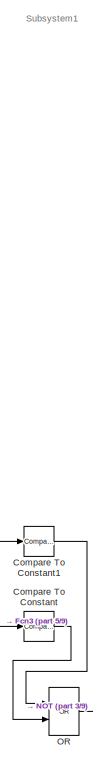
[diagram: root canvas - part 1/9, top left region]
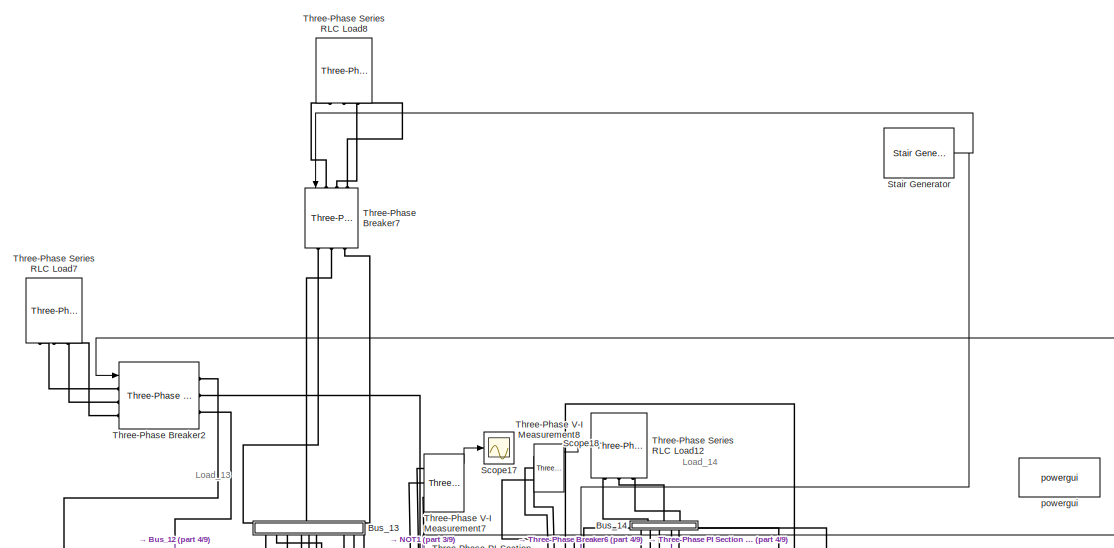
[diagram: root canvas - part 2/9, top center region]
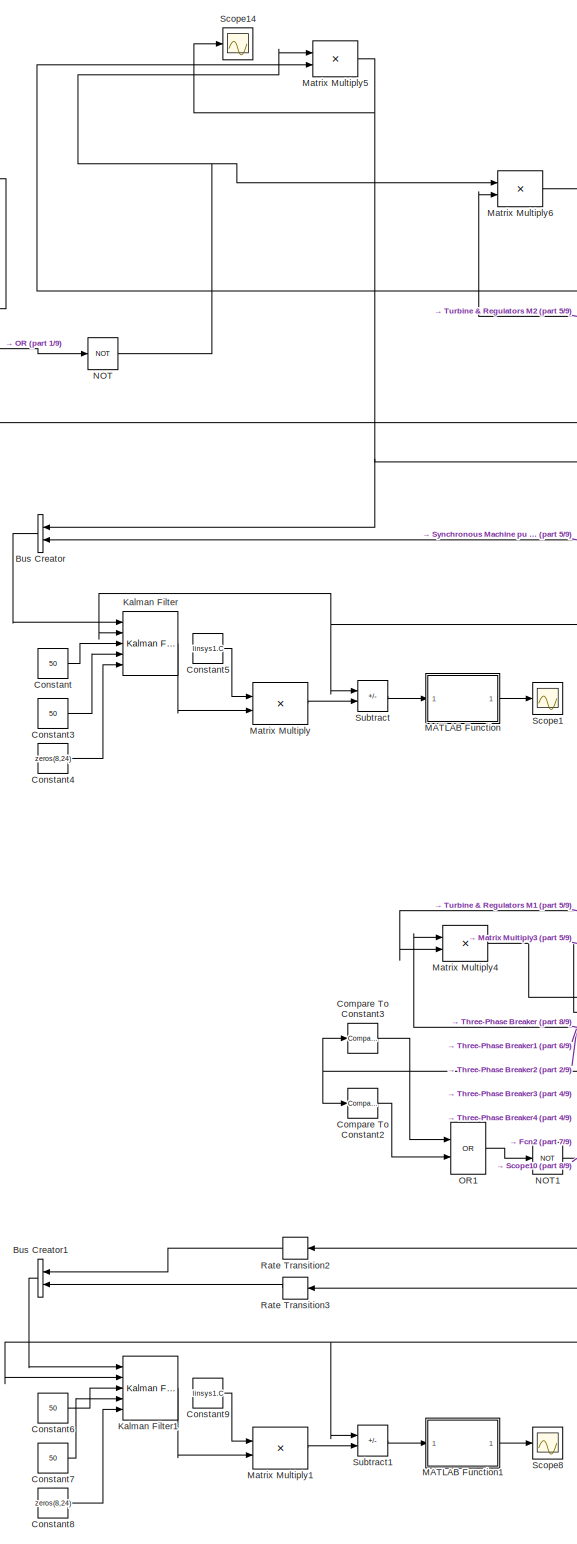
[diagram: root canvas - part 3/9, left side, full height]
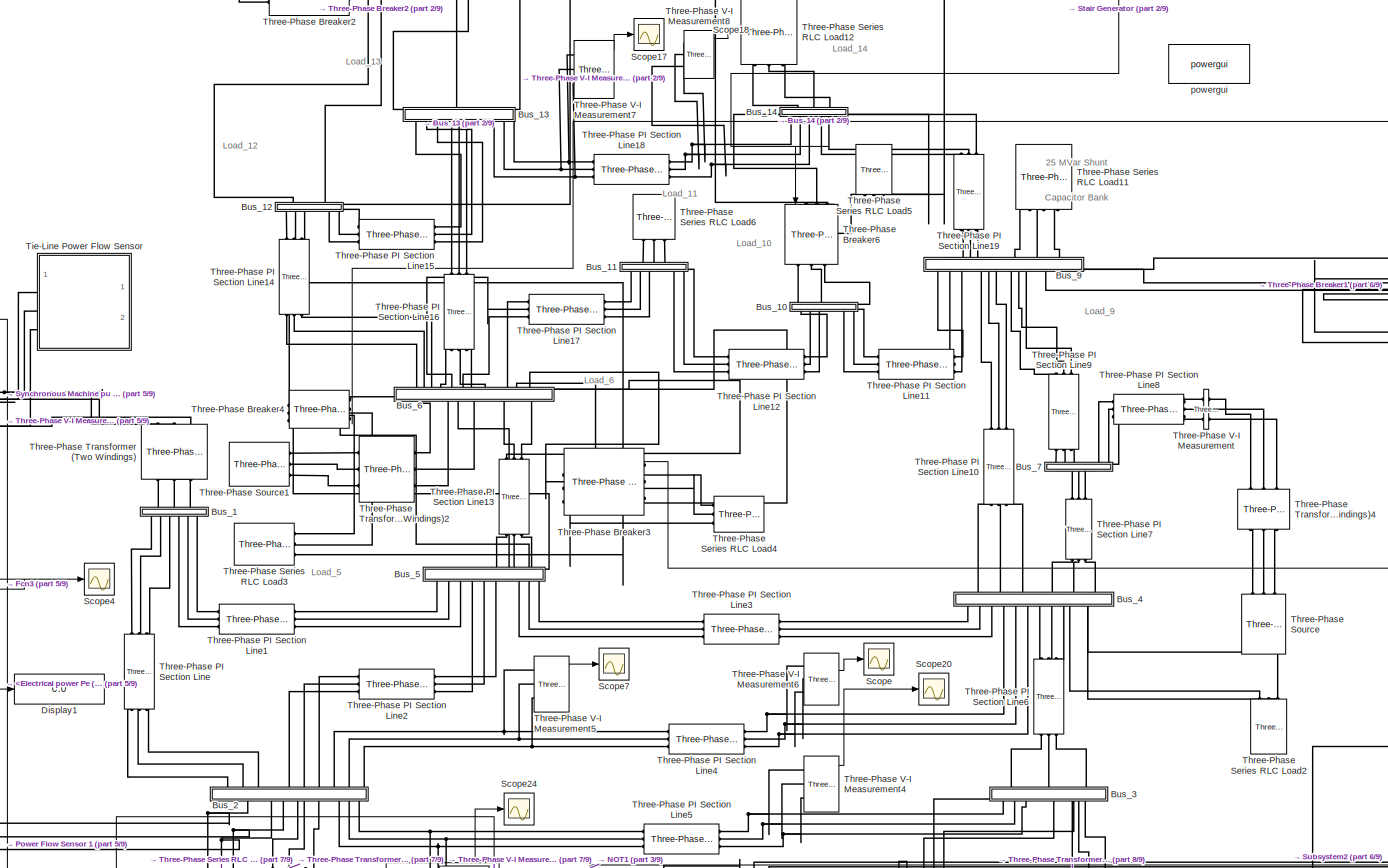
[diagram: root canvas - part 4/9, central region]
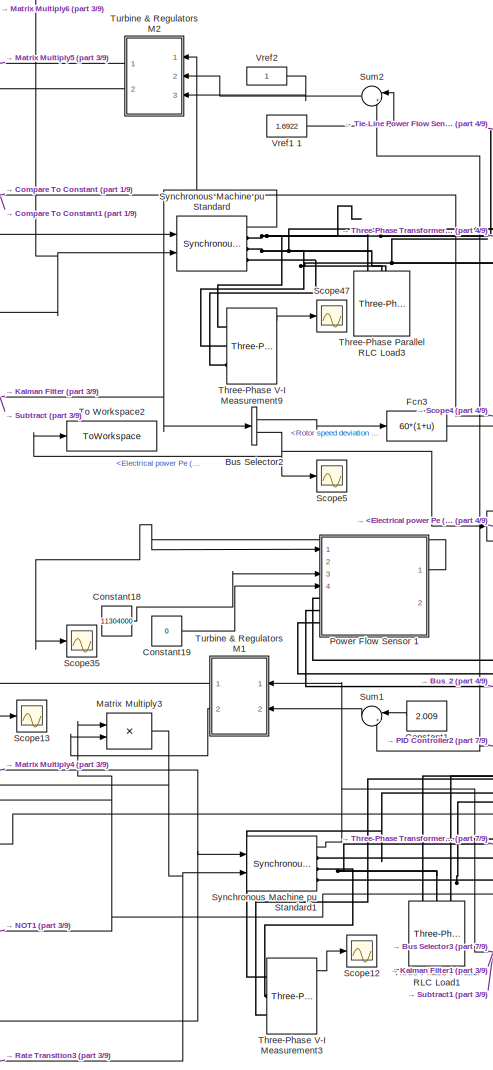
[diagram: root canvas - part 5/9, middle left region]
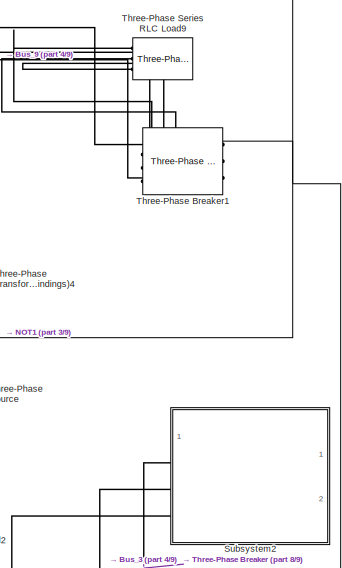
[diagram: root canvas - part 6/9, middle right region]
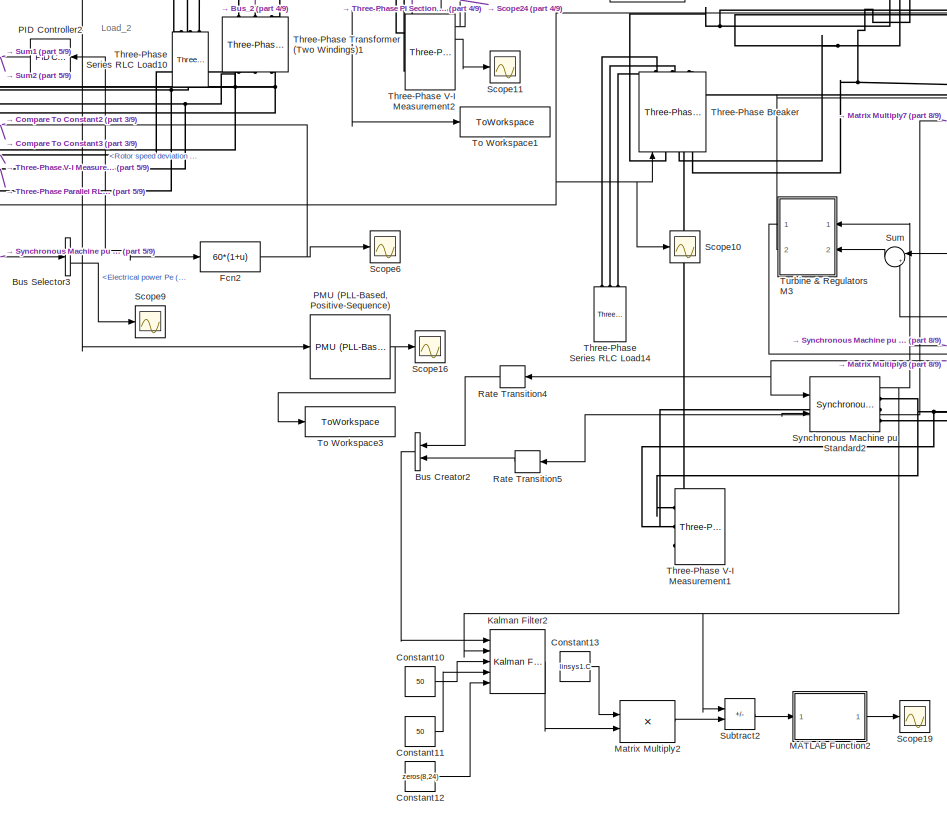
[diagram: root canvas - part 7/9, bottom center region]
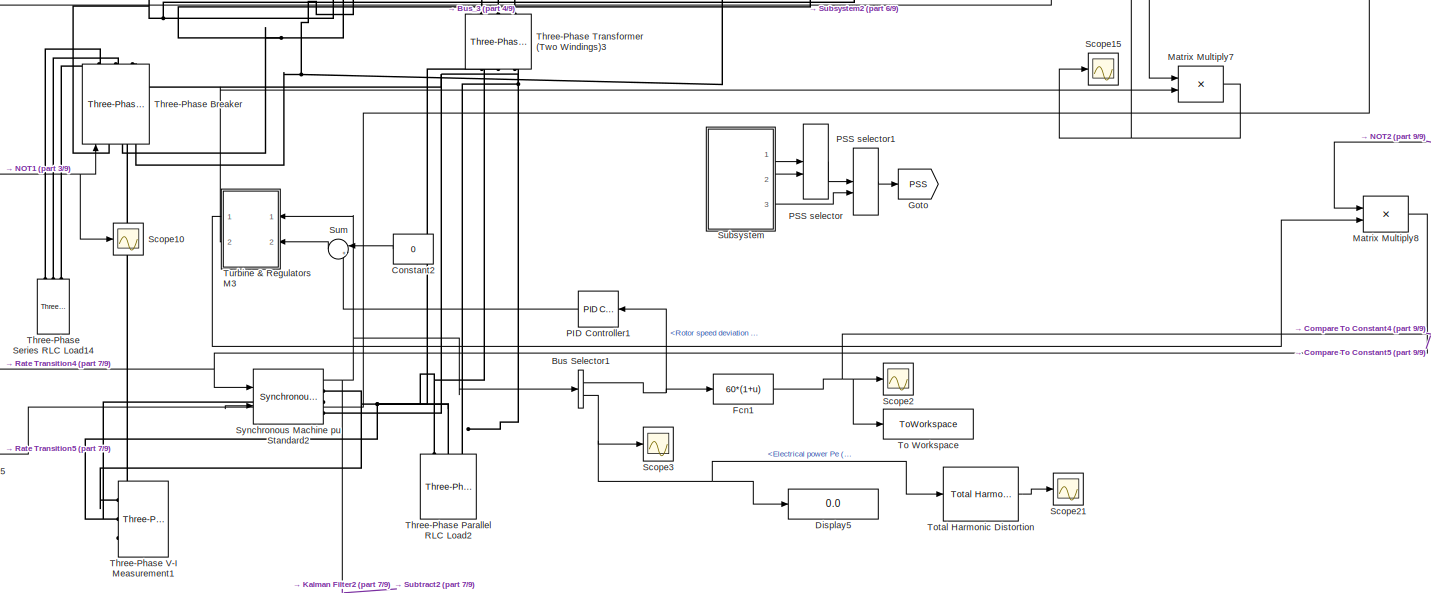
[diagram: root canvas - part 8/9, bottom center region]
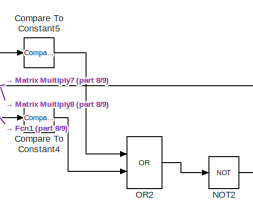
[diagram: root canvas - part 9/9, bottom right region]
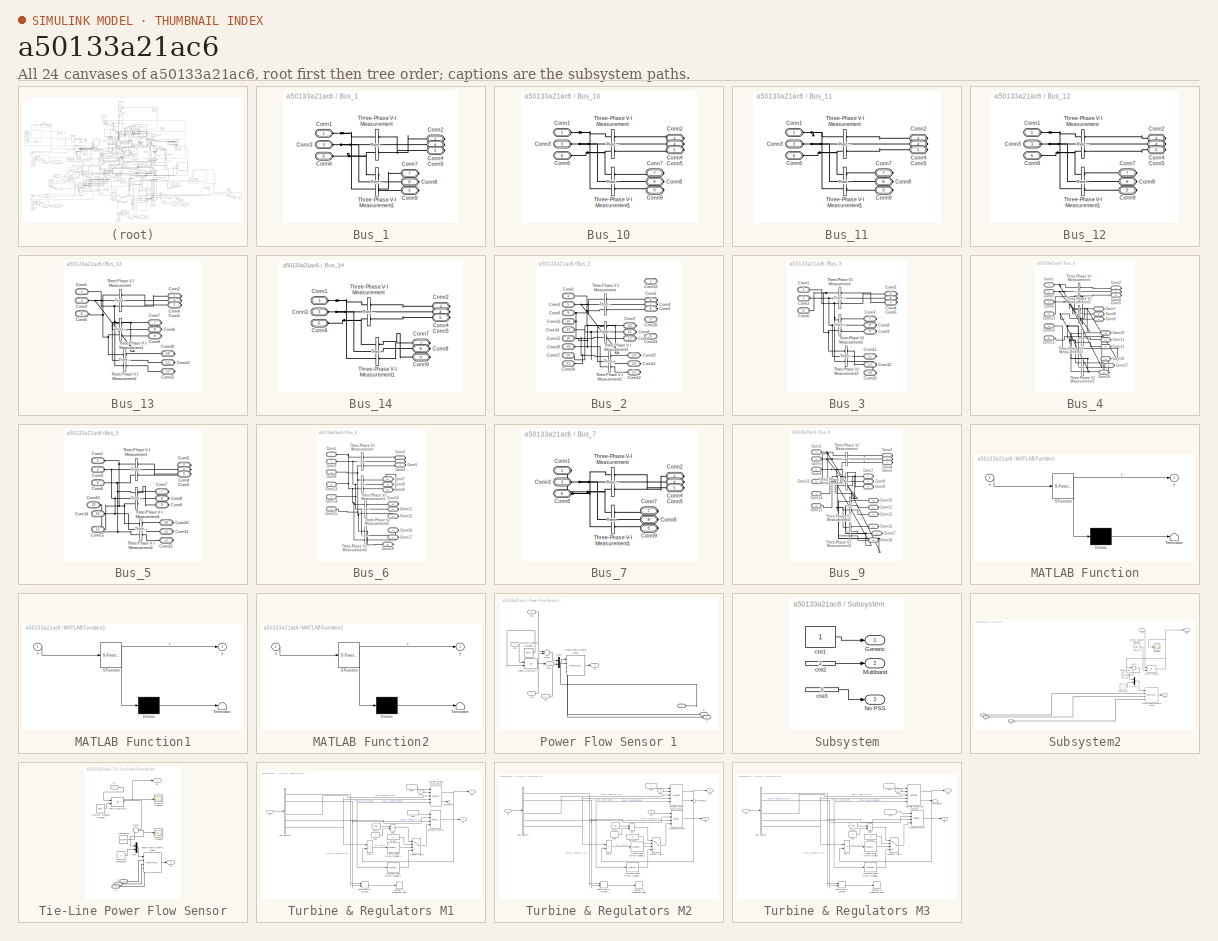
[diagram: thumbnail index - all 24 canvases of the model, root first then tree order]
MODEL slx_a50133a21ac6
KIND model
CONFIG AbsTol = auto
CONFIG EnableMultiTasking = off
CONFIG FixedStep = auto
CONFIG MaxStep = auto
CONFIG MinStep = auto
CONFIG RelTol = 1e-3
CONFIG SampleTimeConstraint = Unconstrained
CONFIG SolverName = ode113
CONFIG StartTime = 0.0
CONFIG StopTime = 1
BLOCK [BusCreator] Bus Creator
  DisplayOption = bar
  InheritFromInputs = on
  Inputs = 2
  NameLocation = top
  Ports = [2, 1]
BLOCK [BusCreator] Bus Creator1
  DisplayOption = bar
  InheritFromInputs = on
  Inputs = 2
  NameLocation = top
  Ports = [2, 1]
BLOCK [BusCreator] Bus Creator2
  DisplayOption = bar
  InheritFromInputs = on
  Inputs = 2
  NameLocation = top
  Ports = [2, 1]
BLOCK [BusSelector] Bus Selector1
  OutputSignals = Mechanical.Rotor speed deviation  dw (pu),Mechanical.Electrical power  Pe (pu)
  Ports = [1, 2]
BLOCK [BusSelector] Bus Selector2
  OutputSignals = Mechanical.Rotor speed deviation  dw (pu),Mechanical.Electrical power  Pe (pu)
  Ports = [1, 2]
BLOCK [BusSelector] Bus Selector3
  OutputSignals = Mechanical.Rotor speed deviation  dw (pu),Mechanical.Electrical power  Pe (pu)
  Ports = [1, 2]
BLOCK [SubSystem] Bus_1
  NameLocation = left
  Ports = [0, 0, 0, 0, 0, 3, 6]
  RequestExecContextInheritance = off
BLOCK [PMIOPort] Bus_1/Conn1
  Side = Left
BLOCK [PMIOPort] Bus_1/Conn2
  Port = 2
  Side = Right
BLOCK [PMIOPort] Bus_1/Conn3
  Port = 3
  Side = Left
BLOCK [PMIOPort] Bus_1/Conn4
  Port = 4
  Side = Right
BLOCK [PMIOPort] Bus_1/Conn5
  Port = 5
  Side = Right
BLOCK [PMIOPort] Bus_1/Conn6
  Port = 6
  Side = Left
BLOCK [PMIOPort] Bus_1/Conn7
  Port = 7
  Side = Right
BLOCK [PMIOPort] Bus_1/Conn8
  Port = 8
  Side = Right
BLOCK [PMIOPort] Bus_1/Conn9
  Port = 9
  Side = Right
BLOCK [Reference] Bus_1/Three-Phase V-I Measurement  REF=spsThreePhaseVIMeasurementLib/Three-Phase
V-I Measurement
  Ports = [0, 0, 0, 0, 0, 3, 3]
  SourceBlock = spsThreePhaseVIMeasurementLib/Three-Phase\nV-I Measurement
  SourceProductBaseCode = PS
  SourceType = Three-Phase VI Measurement
BLOCK [Reference] Bus_1/Three-Phase V-I Measurement1  REF=spsThreePhaseVIMeasurementLib/Three-Phase
V-I Measurement
  Ports = [0, 0, 0, 0, 0, 3, 3]
  SourceBlock = spsThreePhaseVIMeasurementLib/Three-Phase\nV-I Measurement
  SourceProductBaseCode = PS
  SourceType = Three-Phase VI Measurement
BLOCK [SubSystem] Bus_10
  NameLocation = left
  Ports = [0, 0, 0, 0, 0, 3, 6]
  RequestExecContextInheritance = off
BLOCK [PMIOPort] Bus_10/Conn1
  Side = Left
BLOCK [PMIOPort] Bus_10/Conn2
  Port = 2
  Side = Right
BLOCK [PMIOPort] Bus_10/Conn3
  Port = 3
  Side = Left
BLOCK [PMIOPort] Bus_10/Conn4
  Port = 4
  Side = Right
BLOCK [PMIOPort] Bus_10/Conn5
  Port = 5
  Side = Right
BLOCK [PMIOPort] Bus_10/Conn6
  Port = 6
  Side = Left
BLOCK [PMIOPort] Bus_10/Conn7
  Port = 7
  Side = Right
BLOCK [PMIOPort] Bus_10/Conn8
  Port = 8
  Side = Right
BLOCK [PMIOPort] Bus_10/Conn9
  Port = 9
  Side = Right
BLOCK [Reference] Bus_10/Three-Phase V-I Measurement  REF=spsThreePhaseVIMeasurementLib/Three-Phase
V-I Measurement
  Ports = [0, 0, 0, 0, 0, 3, 3]
  SourceBlock = spsThreePhaseVIMeasurementLib/Three-Phase\nV-I Measurement
  SourceProductBaseCode = PS
  SourceType = Three-Phase VI Measurement
BLOCK [Reference] Bus_10/Three-Phase V-I Measurement1  REF=spsThreePhaseVIMeasurementLib/Three-Phase
V-I Measurement
  Ports = [0, 0, 0, 0, 0, 3, 3]
  SourceBlock = spsThreePhaseVIMeasurementLib/Three-Phase\nV-I Measurement
  SourceProductBaseCode = PS
  SourceType = Three-Phase VI Measurement
BLOCK [SubSystem] Bus_11
  NameLocation = left
  Ports = [0, 0, 0, 0, 0, 3, 6]
  RequestExecContextInheritance = off
BLOCK [PMIOPort] Bus_11/Conn1
  Side = Left
BLOCK [PMIOPort] Bus_11/Conn2
  Port = 2
  Side = Right
BLOCK [PMIOPort] Bus_11/Conn3
  Port = 3
  Side = Left
BLOCK [PMIOPort] Bus_11/Conn4
  Port = 4
  Side = Right
BLOCK [PMIOPort] Bus_11/Conn5
  Port = 5
  Side = Right
BLOCK [PMIOPort] Bus_11/Conn6
  Port = 6
  Side = Left
BLOCK [PMIOPort] Bus_11/Conn7
  Port = 7
  Side = Right
BLOCK [PMIOPort] Bus_11/Conn8
  Port = 8
  Side = Right
BLOCK [PMIOPort] Bus_11/Conn9
  Port = 9
  Side = Right
BLOCK [Reference] Bus_11/Three-Phase V-I Measurement  REF=spsThreePhaseVIMeasurementLib/Three-Phase
V-I Measurement
  Ports = [0, 0, 0, 0, 0, 3, 3]
  SourceBlock = spsThreePhaseVIMeasurementLib/Three-Phase\nV-I Measurement
  SourceProductBaseCode = PS
  SourceType = Three-Phase VI Measurement
BLOCK [Reference] Bus_11/Three-Phase V-I Measurement1  REF=spsThreePhaseVIMeasurementLib/Three-Phase
V-I Measurement
  Ports = [0, 0, 0, 0, 0, 3, 3]
  SourceBlock = spsThreePhaseVIMeasurementLib/Three-Phase\nV-I Measurement
  SourceProductBaseCode = PS
  SourceType = Three-Phase VI Measurement
BLOCK [SubSystem] Bus_12
  NameLocation = left
  Ports = [0, 0, 0, 0, 0, 3, 6]
  RequestExecContextInheritance = off
BLOCK [PMIOPort] Bus_12/Conn1
  Side = Left
BLOCK [PMIOPort] Bus_12/Conn2
  Port = 2
  Side = Right
BLOCK [PMIOPort] Bus_12/Conn3
  Port = 3
  Side = Left
BLOCK [PMIOPort] Bus_12/Conn4
  Port = 4
  Side = Right
BLOCK [PMIOPort] Bus_12/Conn5
  Port = 5
  Side = Right
BLOCK [PMIOPort] Bus_12/Conn6
  Port = 6
  Side = Left
BLOCK [PMIOPort] Bus_12/Conn7
  Port = 7
  Side = Right
BLOCK [PMIOPort] Bus_12/Conn8
  Port = 8
  Side = Right
BLOCK [PMIOPort] Bus_12/Conn9
  Port = 9
  Side = Right
BLOCK [Reference] Bus_12/Three-Phase V-I Measurement  REF=spsThreePhaseVIMeasurementLib/Three-Phase
V-I Measurement
  Ports = [0, 0, 0, 0, 0, 3, 3]
  SourceBlock = spsThreePhaseVIMeasurementLib/Three-Phase\nV-I Measurement
  SourceProductBaseCode = PS
  SourceType = Three-Phase VI Measurement
BLOCK [Reference] Bus_12/Three-Phase V-I Measurement1  REF=spsThreePhaseVIMeasurementLib/Three-Phase
V-I Measurement
  Ports = [0, 0, 0, 0, 0, 3, 3]
  SourceBlock = spsThreePhaseVIMeasurementLib/Three-Phase\nV-I Measurement
  SourceProductBaseCode = PS
  SourceType = Three-Phase VI Measurement
BLOCK [SubSystem] Bus_13
  NameLocation = left
  Ports = [0, 0, 0, 0, 0, 3, 9]
  RequestExecContextInheritance = off
BLOCK [PMIOPort] Bus_13/Conn1
  Side = Left
BLOCK [PMIOPort] Bus_13/Conn10
  Port = 10
  Side = Right
BLOCK [PMIOPort] Bus_13/Conn11
  Port = 11
  Side = Right
BLOCK [PMIOPort] Bus_13/Conn12
  Port = 12
  Side = Right
BLOCK [PMIOPort] Bus_13/Conn2
  Port = 2
  Side = Right
BLOCK [PMIOPort] Bus_13/Conn3
  Port = 3
  Side = Left
BLOCK [PMIOPort] Bus_13/Conn4
  Port = 4
  Side = Right
BLOCK [PMIOPort] Bus_13/Conn5
  Port = 5
  Side = Right
BLOCK [PMIOPort] Bus_13/Conn6
  Port = 6
  Side = Left
BLOCK [PMIOPort] Bus_13/Conn7
  Port = 7
  Side = Right
BLOCK [PMIOPort] Bus_13/Conn8
  Port = 8
  Side = Right
BLOCK [PMIOPort] Bus_13/Conn9
  Port = 9
  Side = Right
BLOCK [Reference] Bus_13/Three-Phase V-I Measurement  REF=spsThreePhaseVIMeasurementLib/Three-Phase
V-I Measurement
  Ports = [0, 0, 0, 0, 0, 3, 3]
  SourceBlock = spsThreePhaseVIMeasurementLib/Three-Phase\nV-I Measurement
  SourceProductBaseCode = PS
  SourceType = Three-Phase VI Measurement
BLOCK [Reference] Bus_13/Three-Phase V-I Measurement1  REF=spsThreePhaseVIMeasurementLib/Three-Phase
V-I Measurement
  Ports = [0, 0, 0, 0, 0, 3, 3]
  SourceBlock = spsThreePhaseVIMeasurementLib/Three-Phase\nV-I Measurement
  SourceProductBaseCode = PS
  SourceType = Three-Phase VI Measurement
BLOCK [Reference] Bus_13/Three-Phase V-I Measurement2  REF=spsThreePhaseVIMeasurementLib/Three-Phase
V-I Measurement
  Ports = [0, 0, 0, 0, 0, 3, 3]
  SourceBlock = spsThreePhaseVIMeasurementLib/Three-Phase\nV-I Measurement
  SourceProductBaseCode = PS
  SourceType = Three-Phase VI Measurement
BLOCK [SubSystem] Bus_14
  NameLocation = left
  Ports = [0, 0, 0, 0, 0, 3, 6]
  RequestExecContextInheritance = off
BLOCK [PMIOPort] Bus_14/Conn1
  Side = Left
BLOCK [PMIOPort] Bus_14/Conn2
  Port = 2
  Side = Right
BLOCK [PMIOPort] Bus_14/Conn3
  Port = 3
  Side = Left
BLOCK [PMIOPort] Bus_14/Conn4
  Port = 4
  Side = Right
BLOCK [PMIOPort] Bus_14/Conn5
  Port = 5
  Side = Right
BLOCK [PMIOPort] Bus_14/Conn6
  Port = 6
  Side = Left
BLOCK [PMIOPort] Bus_14/Conn7
  Port = 7
  Side = Right
BLOCK [PMIOPort] Bus_14/Conn8
  Port = 8
  Side = Right
BLOCK [PMIOPort] Bus_14/Conn9
  Port = 9
  Side = Right
BLOCK [Reference] Bus_14/Three-Phase V-I Measurement  REF=spsThreePhaseVIMeasurementLib/Three-Phase
V-I Measurement
  Ports = [0, 0, 0, 0, 0, 3, 3]
  SourceBlock = spsThreePhaseVIMeasurementLib/Three-Phase\nV-I Measurement
  SourceProductBaseCode = PS
  SourceType = Three-Phase VI Measurement
BLOCK [Reference] Bus_14/Three-Phase V-I Measurement1  REF=spsThreePhaseVIMeasurementLib/Three-Phase
V-I Measurement
  Ports = [0, 0, 0, 0, 0, 3, 3]
  SourceBlock = spsThreePhaseVIMeasurementLib/Three-Phase\nV-I Measurement
  SourceProductBaseCode = PS
  SourceType = Three-Phase VI Measurement
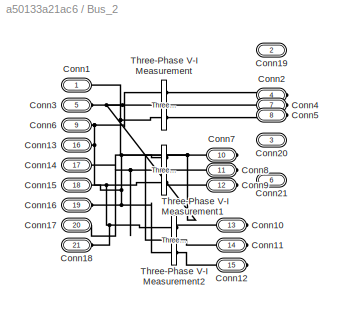
BLOCK [SubSystem] Bus_2
  NameLocation = left
  Ports = [0, 0, 0, 0, 0, 9, 12]
  RequestExecContextInheritance = off
BLOCK [PMIOPort] Bus_2/Conn1
  Side = Left
BLOCK [PMIOPort] Bus_2/Conn10
  Port = 13
  Side = Right
BLOCK [PMIOPort] Bus_2/Conn11
  Port = 14
  Side = Right
BLOCK [PMIOPort] Bus_2/Conn12
  Port = 15
  Side = Right
BLOCK [PMIOPort] Bus_2/Conn13
  Port = 16
  Side = Left
BLOCK [PMIOPort] Bus_2/Conn14
  Port = 17
  Side = Left
BLOCK [PMIOPort] Bus_2/Conn15
  Port = 18
  Side = Left
BLOCK [PMIOPort] Bus_2/Conn16
  Port = 19
  Side = Left
BLOCK [PMIOPort] Bus_2/Conn17
  Port = 20
  Side = Left
BLOCK [PMIOPort] Bus_2/Conn18
  Port = 21
  Side = Left
BLOCK [PMIOPort] Bus_2/Conn19
  Port = 2
  Side = Right
BLOCK [PMIOPort] Bus_2/Conn2
  Port = 4
  Side = Right
BLOCK [PMIOPort] Bus_2/Conn20
  Port = 3
  Side = Right
BLOCK [PMIOPort] Bus_2/Conn21
  Port = 6
  Side = Right
BLOCK [PMIOPort] Bus_2/Conn3
  Port = 5
  Side = Left
BLOCK [PMIOPort] Bus_2/Conn4
  Port = 7
  Side = Right
BLOCK [PMIOPort] Bus_2/Conn5
  Port = 8
  Side = Right
BLOCK [PMIOPort] Bus_2/Conn6
  Port = 9
  Side = Left
BLOCK [PMIOPort] Bus_2/Conn7
  Port = 10
  Side = Right
BLOCK [PMIOPort] Bus_2/Conn8
  Port = 11
  Side = Right
BLOCK [PMIOPort] Bus_2/Conn9
  Port = 12
  Side = Right
BLOCK [Reference] Bus_2/Three-Phase V-I Measurement  REF=spsThreePhaseVIMeasurementLib/Three-Phase
V-I Measurement
  Ports = [0, 0, 0, 0, 0, 3, 3]
  SourceBlock = spsThreePhaseVIMeasurementLib/Three-Phase\nV-I Measurement
  SourceProductBaseCode = PS
  SourceType = Three-Phase VI Measurement
BLOCK [Reference] Bus_2/Three-Phase V-I Measurement1  REF=spsThreePhaseVIMeasurementLib/Three-Phase
V-I Measurement
  Ports = [0, 0, 0, 0, 0, 3, 3]
  SourceBlock = spsThreePhaseVIMeasurementLib/Three-Phase\nV-I Measurement
  SourceProductBaseCode = PS
  SourceType = Three-Phase VI Measurement
BLOCK [Reference] Bus_2/Three-Phase V-I Measurement2  REF=spsThreePhaseVIMeasurementLib/Three-Phase
V-I Measurement
  Ports = [0, 0, 0, 0, 0, 3, 3]
  SourceBlock = spsThreePhaseVIMeasurementLib/Three-Phase\nV-I Measurement
  SourceProductBaseCode = PS
  SourceType = Three-Phase VI Measurement
BLOCK [SubSystem] Bus_3
  NameLocation = left
  Ports = [0, 0, 0, 0, 0, 3, 9]
  RequestExecContextInheritance = off
BLOCK [PMIOPort] Bus_3/Conn1
  Side = Left
BLOCK [PMIOPort] Bus_3/Conn10
  Port = 10
  Side = Right
BLOCK [PMIOPort] Bus_3/Conn11
  Port = 11
  Side = Right
BLOCK [PMIOPort] Bus_3/Conn12
  Port = 12
  Side = Right
BLOCK [PMIOPort] Bus_3/Conn2
  Port = 2
  Side = Right
BLOCK [PMIOPort] Bus_3/Conn3
  Port = 3
  Side = Left
BLOCK [PMIOPort] Bus_3/Conn4
  Port = 4
  Side = Right
BLOCK [PMIOPort] Bus_3/Conn5
  Port = 5
  Side = Right
BLOCK [PMIOPort] Bus_3/Conn6
  Port = 6
  Side = Left
BLOCK [PMIOPort] Bus_3/Conn7
  Port = 7
  Side = Right
BLOCK [PMIOPort] Bus_3/Conn8
  Port = 8
  Side = Right
BLOCK [PMIOPort] Bus_3/Conn9
  Port = 9
  Side = Right
BLOCK [Reference] Bus_3/Three-Phase V-I Measurement  REF=spsThreePhaseVIMeasurementLib/Three-Phase
V-I Measurement
  Ports = [0, 0, 0, 0, 0, 3, 3]
  SourceBlock = spsThreePhaseVIMeasurementLib/Three-Phase\nV-I Measurement
  SourceProductBaseCode = PS
  SourceType = Three-Phase VI Measurement
BLOCK [Reference] Bus_3/Three-Phase V-I Measurement1  REF=spsThreePhaseVIMeasurementLib/Three-Phase
V-I Measurement
  Ports = [0, 0, 0, 0, 0, 3, 3]
  SourceBlock = spsThreePhaseVIMeasurementLib/Three-Phase\nV-I Measurement
  SourceProductBaseCode = PS
  SourceType = Three-Phase VI Measurement
BLOCK [Reference] Bus_3/Three-Phase V-I Measurement2  REF=spsThreePhaseVIMeasurementLib/Three-Phase
V-I Measurement
  Ports = [0, 0, 0, 0, 0, 3, 3]
  SourceBlock = spsThreePhaseVIMeasurementLib/Three-Phase\nV-I Measurement
  SourceProductBaseCode = PS
  SourceType = Three-Phase VI Measurement
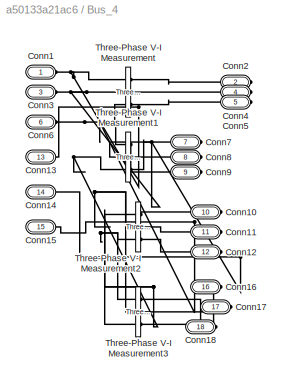
BLOCK [SubSystem] Bus_4
  NameLocation = left
  Ports = [0, 0, 0, 0, 0, 6, 12]
  RequestExecContextInheritance = off
BLOCK [PMIOPort] Bus_4/Conn1
  Side = Left
BLOCK [PMIOPort] Bus_4/Conn10
  Port = 10
  Side = Right
BLOCK [PMIOPort] Bus_4/Conn11
  Port = 11
  Side = Right
BLOCK [PMIOPort] Bus_4/Conn12
  Port = 12
  Side = Right
BLOCK [PMIOPort] Bus_4/Conn13
  Port = 13
  Side = Left
BLOCK [PMIOPort] Bus_4/Conn14
  Port = 14
  Side = Left
BLOCK [PMIOPort] Bus_4/Conn15
  Port = 15
  Side = Left
BLOCK [PMIOPort] Bus_4/Conn16
  Port = 16
  Side = Right
BLOCK [PMIOPort] Bus_4/Conn17
  Port = 17
  Side = Right
BLOCK [PMIOPort] Bus_4/Conn18
  Port = 18
  Side = Right
BLOCK [PMIOPort] Bus_4/Conn2
  Port = 2
  Side = Right
BLOCK [PMIOPort] Bus_4/Conn3
  Port = 3
  Side = Left
BLOCK [PMIOPort] Bus_4/Conn4
  Port = 4
  Side = Right
BLOCK [PMIOPort] Bus_4/Conn5
  Port = 5
  Side = Right
BLOCK [PMIOPort] Bus_4/Conn6
  Port = 6
  Side = Left
BLOCK [PMIOPort] Bus_4/Conn7
  Port = 7
  Side = Right
BLOCK [PMIOPort] Bus_4/Conn8
  Port = 8
  Side = Right
BLOCK [PMIOPort] Bus_4/Conn9
  Port = 9
  Side = Right
BLOCK [Reference] Bus_4/Three-Phase V-I Measurement  REF=spsThreePhaseVIMeasurementLib/Three-Phase
V-I Measurement
  Ports = [0, 0, 0, 0, 0, 3, 3]
  SourceBlock = spsThreePhaseVIMeasurementLib/Three-Phase\nV-I Measurement
  SourceProductBaseCode = PS
  SourceType = Three-Phase VI Measurement
BLOCK [Reference] Bus_4/Three-Phase V-I Measurement1  REF=spsThreePhaseVIMeasurementLib/Three-Phase
V-I Measurement
  Ports = [0, 0, 0, 0, 0, 3, 3]
  SourceBlock = spsThreePhaseVIMeasurementLib/Three-Phase\nV-I Measurement
  SourceProductBaseCode = PS
  SourceType = Three-Phase VI Measurement
BLOCK [Reference] Bus_4/Three-Phase V-I Measurement2  REF=spsThreePhaseVIMeasurementLib/Three-Phase
V-I Measurement
  Ports = [0, 0, 0, 0, 0, 3, 3]
  SourceBlock = spsThreePhaseVIMeasurementLib/Three-Phase\nV-I Measurement
  SourceProductBaseCode = PS
  SourceType = Three-Phase VI Measurement
BLOCK [Reference] Bus_4/Three-Phase V-I Measurement3  REF=spsThreePhaseVIMeasurementLib/Three-Phase
V-I Measurement
  Ports = [0, 0, 0, 0, 0, 3, 3]
  SourceBlock = spsThreePhaseVIMeasurementLib/Three-Phase\nV-I Measurement
  SourceProductBaseCode = PS
  SourceType = Three-Phase VI Measurement
BLOCK [SubSystem] Bus_5
  NameLocation = left
  Ports = [0, 0, 0, 0, 0, 6, 9]
  RequestExecContextInheritance = off
BLOCK [PMIOPort] Bus_5/Conn1
  Side = Left
BLOCK [PMIOPort] Bus_5/Conn10
  Port = 10
  Side = Right
BLOCK [PMIOPort] Bus_5/Conn11
  Port = 11
  Side = Right
BLOCK [PMIOPort] Bus_5/Conn12
  Port = 12
  Side = Right
BLOCK [PMIOPort] Bus_5/Conn13
  Port = 13
  Side = Left
BLOCK [PMIOPort] Bus_5/Conn14
  Port = 14
  Side = Left
BLOCK [PMIOPort] Bus_5/Conn15
  Port = 15
  Side = Left
BLOCK [PMIOPort] Bus_5/Conn2
  Port = 2
  Side = Right
BLOCK [PMIOPort] Bus_5/Conn3
  Port = 3
  Side = Left
BLOCK [PMIOPort] Bus_5/Conn4
  Port = 4
  Side = Right
BLOCK [PMIOPort] Bus_5/Conn5
  Port = 5
  Side = Right
BLOCK [PMIOPort] Bus_5/Conn6
  Port = 6
  Side = Left
BLOCK [PMIOPort] Bus_5/Conn7
  Port = 7
  Side = Right
BLOCK [PMIOPort] Bus_5/Conn8
  Port = 8
  Side = Right
BLOCK [PMIOPort] Bus_5/Conn9
  Port = 9
  Side = Right
BLOCK [Reference] Bus_5/Three-Phase V-I Measurement  REF=spsThreePhaseVIMeasurementLib/Three-Phase
V-I Measurement
  Ports = [0, 0, 0, 0, 0, 3, 3]
  SourceBlock = spsThreePhaseVIMeasurementLib/Three-Phase\nV-I Measurement
  SourceProductBaseCode = PS
  SourceType = Three-Phase VI Measurement
BLOCK [Reference] Bus_5/Three-Phase V-I Measurement1  REF=spsThreePhaseVIMeasurementLib/Three-Phase
V-I Measurement
  Ports = [0, 0, 0, 0, 0, 3, 3]
  SourceBlock = spsThreePhaseVIMeasurementLib/Three-Phase\nV-I Measurement
  SourceProductBaseCode = PS
  SourceType = Three-Phase VI Measurement
BLOCK [Reference] Bus_5/Three-Phase V-I Measurement2  REF=spsThreePhaseVIMeasurementLib/Three-Phase
V-I Measurement
  Ports = [0, 0, 0, 0, 0, 3, 3]
  SourceBlock = spsThreePhaseVIMeasurementLib/Three-Phase\nV-I Measurement
  SourceProductBaseCode = PS
  SourceType = Three-Phase VI Measurement
BLOCK [SubSystem] Bus_6
  NameLocation = right
  Ports = [0, 0, 0, 0, 0, 5, 13]
  RequestExecContextInheritance = off
BLOCK [PMIOPort] Bus_6/Conn1
  Side = Left
BLOCK [PMIOPort] Bus_6/Conn10
  Port = 10
  Side = Right
BLOCK [PMIOPort] Bus_6/Conn11
  Port = 11
  Side = Right
BLOCK [PMIOPort] Bus_6/Conn12
  Port = 12
  Side = Right
BLOCK [PMIOPort] Bus_6/Conn13
  Port = 16
  Side = Right
BLOCK [PMIOPort] Bus_6/Conn14
  Port = 4
  Side = Left
BLOCK [PMIOPort] Bus_6/Conn15
  Port = 5
  Side = Left
BLOCK [PMIOPort] Bus_6/Conn16
  Port = 6
  Side = Right
BLOCK [PMIOPort] Bus_6/Conn17
  Port = 17
  Side = Right
BLOCK [PMIOPort] Bus_6/Conn18
  Port = 18
  Side = Right
BLOCK [PMIOPort] Bus_6/Conn2
  Port = 7
  Side = Right
BLOCK [PMIOPort] Bus_6/Conn3
  Port = 3
  Side = Left
BLOCK [PMIOPort] Bus_6/Conn4
  Port = 8
  Side = Right
BLOCK [PMIOPort] Bus_6/Conn5
  Port = 9
  Side = Right
BLOCK [PMIOPort] Bus_6/Conn6
  Port = 2
  Side = Left
BLOCK [PMIOPort] Bus_6/Conn7
  Port = 13
  Side = Right
BLOCK [PMIOPort] Bus_6/Conn8
  Port = 14
  Side = Right
BLOCK [PMIOPort] Bus_6/Conn9
  Port = 15
  Side = Right
BLOCK [Reference] Bus_6/Three-Phase V-I Measurement  REF=spsThreePhaseVIMeasurementLib/Three-Phase
V-I Measurement
  Ports = [0, 0, 0, 0, 0, 3, 3]
  SourceBlock = spsThreePhaseVIMeasurementLib/Three-Phase\nV-I Measurement
  SourceProductBaseCode = PS
  SourceType = Three-Phase VI Measurement
BLOCK [Reference] Bus_6/Three-Phase V-I Measurement1  REF=spsThreePhaseVIMeasurementLib/Three-Phase
V-I Measurement
  Ports = [0, 0, 0, 0, 0, 3, 3]
  SourceBlock = spsThreePhaseVIMeasurementLib/Three-Phase\nV-I Measurement
  SourceProductBaseCode = PS
  SourceType = Three-Phase VI Measurement
BLOCK [Reference] Bus_6/Three-Phase V-I Measurement2  REF=spsThreePhaseVIMeasurementLib/Three-Phase
V-I Measurement
  Ports = [0, 0, 0, 0, 0, 3, 3]
  SourceBlock = spsThreePhaseVIMeasurementLib/Three-Phase\nV-I Measurement
  SourceProductBaseCode = PS
  SourceType = Three-Phase VI Measurement
BLOCK [Reference] Bus_6/Three-Phase V-I Measurement3  REF=spsThreePhaseVIMeasurementLib/Three-Phase
V-I Measurement
  Ports = [0, 0, 0, 0, 0, 3, 3]
  SourceBlock = spsThreePhaseVIMeasurementLib/Three-Phase\nV-I Measurement
  SourceProductBaseCode = PS
  SourceType = Three-Phase VI Measurement
BLOCK [SubSystem] Bus_7
  NameLocation = right
  Ports = [0, 0, 0, 0, 0, 3, 6]
  RequestExecContextInheritance = off
BLOCK [PMIOPort] Bus_7/Conn1
  Side = Left
BLOCK [PMIOPort] Bus_7/Conn2
  Port = 2
  Side = Right
BLOCK [PMIOPort] Bus_7/Conn3
  Port = 3
  Side = Left
BLOCK [PMIOPort] Bus_7/Conn4
  Port = 4
  Side = Right
BLOCK [PMIOPort] Bus_7/Conn5
  Port = 5
  Side = Right
BLOCK [PMIOPort] Bus_7/Conn6
  Port = 6
  Side = Left
BLOCK [PMIOPort] Bus_7/Conn7
  Port = 7
  Side = Right
BLOCK [PMIOPort] Bus_7/Conn8
  Port = 8
  Side = Right
BLOCK [PMIOPort] Bus_7/Conn9
  Port = 9
  Side = Right
BLOCK [Reference] Bus_7/Three-Phase V-I Measurement  REF=spsThreePhaseVIMeasurementLib/Three-Phase
V-I Measurement
  Ports = [0, 0, 0, 0, 0, 3, 3]
  SourceBlock = spsThreePhaseVIMeasurementLib/Three-Phase\nV-I Measurement
  SourceProductBaseCode = PS
  SourceType = Three-Phase VI Measurement
BLOCK [Reference] Bus_7/Three-Phase V-I Measurement1  REF=spsThreePhaseVIMeasurementLib/Three-Phase
V-I Measurement
  Ports = [0, 0, 0, 0, 0, 3, 3]
  SourceBlock = spsThreePhaseVIMeasurementLib/Three-Phase\nV-I Measurement
  SourceProductBaseCode = PS
  SourceType = Three-Phase VI Measurement
BLOCK [SubSystem] Bus_9
  NameLocation = left
  Ports = [0, 0, 0, 0, 0, 6, 12]
  RequestExecContextInheritance = off
BLOCK [PMIOPort] Bus_9/Conn1
  Side = Left
BLOCK [PMIOPort] Bus_9/Conn10
  Port = 10
  Side = Right
BLOCK [PMIOPort] Bus_9/Conn11
  Port = 11
  Side = Right
BLOCK [PMIOPort] Bus_9/Conn12
  Port = 12
  Side = Right
BLOCK [PMIOPort] Bus_9/Conn13
  Port = 13
  Side = Left
BLOCK [PMIOPort] Bus_9/Conn14
  Port = 14
  Side = Left
BLOCK [PMIOPort] Bus_9/Conn15
  Port = 15
  Side = Left
BLOCK [PMIOPort] Bus_9/Conn16
  Port = 16
  Side = Right
BLOCK [PMIOPort] Bus_9/Conn17
  Port = 17
  Side = Right
BLOCK [PMIOPort] Bus_9/Conn18
  Port = 18
  Side = Right
BLOCK [PMIOPort] Bus_9/Conn2
  Port = 2
  Side = Right
BLOCK [PMIOPort] Bus_9/Conn3
  Port = 3
  Side = Left
BLOCK [PMIOPort] Bus_9/Conn4
  Port = 4
  Side = Right
BLOCK [PMIOPort] Bus_9/Conn5
  Port = 5
  Side = Right
BLOCK [PMIOPort] Bus_9/Conn6
  Port = 6
  Side = Left
BLOCK [PMIOPort] Bus_9/Conn7
  Port = 7
  Side = Right
BLOCK [PMIOPort] Bus_9/Conn8
  Port = 8
  Side = Right
BLOCK [PMIOPort] Bus_9/Conn9
  Port = 9
  Side = Right
BLOCK [Reference] Bus_9/Three-Phase V-I Measurement  REF=spsThreePhaseVIMeasurementLib/Three-Phase
V-I Measurement
  Ports = [0, 0, 0, 0, 0, 3, 3]
  SourceBlock = spsThreePhaseVIMeasurementLib/Three-Phase\nV-I Measurement
  SourceProductBaseCode = PS
  SourceType = Three-Phase VI Measurement
BLOCK [Reference] Bus_9/Three-Phase V-I Measurement1  REF=spsThreePhaseVIMeasurementLib/Three-Phase
V-I Measurement
  Ports = [0, 0, 0, 0, 0, 3, 3]
  SourceBlock = spsThreePhaseVIMeasurementLib/Three-Phase\nV-I Measurement
  SourceProductBaseCode = PS
  SourceType = Three-Phase VI Measurement
BLOCK [Reference] Bus_9/Three-Phase V-I Measurement2  REF=spsThreePhaseVIMeasurementLib/Three-Phase
V-I Measurement
  Ports = [0, 0, 0, 0, 0, 3, 3]
  SourceBlock = spsThreePhaseVIMeasurementLib/Three-Phase\nV-I Measurement
  SourceProductBaseCode = PS
  SourceType = Three-Phase VI Measurement
BLOCK [Reference] Bus_9/Three-Phase V-I Measurement3  REF=spsThreePhaseVIMeasurementLib/Three-Phase
V-I Measurement
  Ports = [0, 0, 0, 0, 0, 3, 3]
  SourceBlock = spsThreePhaseVIMeasurementLib/Three-Phase\nV-I Measurement
  SourceProductBaseCode = PS
  SourceType = Three-Phase VI Measurement
BLOCK [Reference] Compare To Constant  REF=simulink/Logic and Bit
Operations/Compare
To Constant
  Ports = [1, 1]
  SourceBlock = simulink/Logic and Bit\nOperations/Compare\nTo Constant
  SourceProductBaseCode = SL
  SourceType = Compare To Constant
BLOCK [Reference] Compare To Constant1  REF=simulink/Logic and Bit
Operations/Compare
To Constant
  Ports = [1, 1]
  SourceBlock = simulink/Logic and Bit\nOperations/Compare\nTo Constant
  SourceProductBaseCode = SL
  SourceType = Compare To Constant
BLOCK [Reference] Compare To Constant2  REF=simulink/Logic and Bit
Operations/Compare
To Constant
  Ports = [1, 1]
  SourceBlock = simulink/Logic and Bit\nOperations/Compare\nTo Constant
  SourceProductBaseCode = SL
  SourceType = Compare To Constant
BLOCK [Reference] Compare To Constant3  REF=simulink/Logic and Bit
Operations/Compare
To Constant
  Ports = [1, 1]
  SourceBlock = simulink/Logic and Bit\nOperations/Compare\nTo Constant
  SourceProductBaseCode = SL
  SourceType = Compare To Constant
BLOCK [Reference] Compare To Constant4  REF=simulink/Logic and Bit
Operations/Compare
To Constant
  Ports = [1, 1]
  SourceBlock = simulink/Logic and Bit\nOperations/Compare\nTo Constant
  SourceProductBaseCode = SL
  SourceType = Compare To Constant
BLOCK [Reference] Compare To Constant5  REF=simulink/Logic and Bit
Operations/Compare
To Constant
  Ports = [1, 1]
  SourceBlock = simulink/Logic and Bit\nOperations/Compare\nTo Constant
  SourceProductBaseCode = SL
  SourceType = Compare To Constant
BLOCK [Constant] Constant
  Value = 50
BLOCK [Constant] Constant1
  NameLocation = top
  Value = 2.009
BLOCK [Constant] Constant10
  Value = 50
BLOCK [Constant] Constant11
  Value = 50
BLOCK [Constant] Constant12
  Value = zeros(8,24)
BLOCK [Constant] Constant13
  Value = linsys1.C
BLOCK [Constant] Constant18
  SampleTime = -1
  Value = 11304000
BLOCK [Constant] Constant19
  Value = 0
BLOCK [Constant] Constant2
  NameLocation = top
  Value = 0
BLOCK [Constant] Constant3
  Value = 50
BLOCK [Constant] Constant4
  Value = zeros(8,24)
BLOCK [Constant] Constant5
  Value = linsys1.C
BLOCK [Constant] Constant6
  Value = 50
BLOCK [Constant] Constant7
  Value = 50
BLOCK [Constant] Constant8
  Value = zeros(8,24)
BLOCK [Constant] Constant9
  Value = linsys1.C
BLOCK [Display] Display1
  Decimation = 1
  Ports = [1]
BLOCK [Display] Display5
  Decimation = 1
  Ports = [1]
BLOCK [Fcn] Fcn1
  Expr = 60*(1+u)
BLOCK [Fcn] Fcn2
  Expr = 60*(1+u)
BLOCK [Fcn] Fcn3
  Expr = 60*(1+u)
BLOCK [Goto] Goto
  GotoTag = PSS
  TagVisibility = global
BLOCK [Reference] Kalman Filter  REF=ctrlSharedLib/Kalman Filter
  Ports = [5, 1]
  SourceBlock = ctrlSharedLib/Kalman Filter
  SourceProductBaseCode = CT,ID
  SourceType = ctrlKalmanFilter
BLOCK [Reference] Kalman Filter1  REF=ctrlSharedLib/Kalman Filter
  Ports = [5, 1]
  SourceBlock = ctrlSharedLib/Kalman Filter
  SourceProductBaseCode = CT,ID
  SourceType = ctrlKalmanFilter
BLOCK [Reference] Kalman Filter2  REF=ctrlSharedLib/Kalman Filter
  Ports = [5, 1]
  SourceBlock = ctrlSharedLib/Kalman Filter
  SourceProductBaseCode = CT,ID
  SourceType = ctrlKalmanFilter
BLOCK [SubSystem] MATLAB Function
  ErrorFcn = Stateflow.Translate.translate
  PermitHierarchicalResolution = ExplicitOnly
  Ports = [1, 1]
  RequestExecContextInheritance = off
  SFBlockType = MATLAB Function
  TreatAsAtomicUnit = on
BLOCK [Demux] MATLAB Function/ Demux 
  Outputs = 1
  Ports = [1, 1]
BLOCK [S-Function] MATLAB Function/ SFunction 
  EnableBusSupport = on
  FunctionName = sf_sfun
  PortCounts = [1 2]
  Ports = [1, 2]
  SFcnIsStateOwnerBlock = off
  SFunctionDeploymentMode = off
  Tag = Stateflow S-Function 2
BLOCK [Terminator] MATLAB Function/ Terminator 
BLOCK [Inport] MATLAB Function/u
BLOCK [Outport] MATLAB Function/y
  VectorParamsAs1DForOutWhenUnconnected = off
BLOCK [SubSystem] MATLAB Function1
  ErrorFcn = Stateflow.Translate.translate
  PermitHierarchicalResolution = ExplicitOnly
  Ports = [1, 1]
  RequestExecContextInheritance = off
  SFBlockType = MATLAB Function
  TreatAsAtomicUnit = on
BLOCK [Demux] MATLAB Function1/ Demux 
  Outputs = 1
  Ports = [1, 1]
BLOCK [S-Function] MATLAB Function1/ SFunction 
  EnableBusSupport = on
  FunctionName = sf_sfun
  PortCounts = [1 2]
  Ports = [1, 2]
  SFcnIsStateOwnerBlock = off
  SFunctionDeploymentMode = off
  Tag = Stateflow S-Function 1
BLOCK [Terminator] MATLAB Function1/ Terminator 
BLOCK [Inport] MATLAB Function1/u
BLOCK [Outport] MATLAB Function1/y
  VectorParamsAs1DForOutWhenUnconnected = off
BLOCK [SubSystem] MATLAB Function2
  ErrorFcn = Stateflow.Translate.translate
  PermitHierarchicalResolution = ExplicitOnly
  Ports = [1, 1]
  RequestExecContextInheritance = off
  SFBlockType = MATLAB Function
  TreatAsAtomicUnit = on
BLOCK [Demux] MATLAB Function2/ Demux 
  Outputs = 1
  Ports = [1, 1]
BLOCK [S-Function] MATLAB Function2/ SFunction 
  EnableBusSupport = on
  FunctionName = sf_sfun
  PortCounts = [1 2]
  Ports = [1, 2]
  SFcnIsStateOwnerBlock = off
  SFunctionDeploymentMode = off
  Tag = Stateflow S-Function 5
BLOCK [Terminator] MATLAB Function2/ Terminator 
BLOCK [Inport] MATLAB Function2/u
BLOCK [Outport] MATLAB Function2/y
  VectorParamsAs1DForOutWhenUnconnected = off
BLOCK [Product] Matrix Multiply
  Multiplication = Matrix(*)
  Ports = [2, 1]
BLOCK [Product] Matrix Multiply1
  Multiplication = Matrix(*)
  Ports = [2, 1]
BLOCK [Product] Matrix Multiply2
  Multiplication = Matrix(*)
  Ports = [2, 1]
BLOCK [Product] Matrix Multiply3
  Multiplication = Matrix(*)
  Ports = [2, 1]
BLOCK [Product] Matrix Multiply4
  Multiplication = Matrix(*)
  Ports = [2, 1]
BLOCK [Product] Matrix Multiply5
  Multiplication = Matrix(*)
  Ports = [2, 1]
BLOCK [Product] Matrix Multiply6
  Multiplication = Matrix(*)
  Ports = [2, 1]
BLOCK [Product] Matrix Multiply7
  Multiplication = Matrix(*)
  Ports = [2, 1]
BLOCK [Product] Matrix Multiply8
  Multiplication = Matrix(*)
  Ports = [2, 1]
BLOCK [Logic] NOT
  AllPortsSameDT = off
  IconShape = distinctive
  Operator = NOT
  OutDataTypeStr = boolean
  Ports = [1, 1]
BLOCK [Logic] NOT1
  AllPortsSameDT = off
  IconShape = distinctive
  Operator = NOT
  OutDataTypeStr = boolean
  Ports = [1, 1]
BLOCK [Logic] NOT2
  AllPortsSameDT = off
  IconShape = distinctive
  Operator = NOT
  OutDataTypeStr = boolean
  Ports = [1, 1]
BLOCK [Logic] OR
  AllPortsSameDT = off
  IconShape = distinctive
  Operator = OR
  OutDataTypeStr = boolean
  Ports = [2, 1]
BLOCK [Logic] OR1
  AllPortsSameDT = off
  IconShape = distinctive
  Operator = OR
  OutDataTypeStr = boolean
  Ports = [2, 1]
BLOCK [Logic] OR2
  AllPortsSameDT = off
  IconShape = distinctive
  Operator = OR
  OutDataTypeStr = boolean
  Ports = [2, 1]
BLOCK [Reference] PID Controller1  REF=slpidlib/PID Controller
  NameLocation = top
  Ports = [1, 1]
  SourceBlock = slpidlib/PID Controller
  SourceProductBaseCode = SL
  SourceType = PID 1dof
BLOCK [Reference] PID Controller2  REF=slpidlib/PID Controller
  NameLocation = top
  Ports = [1, 1]
  SourceBlock = slpidlib/PID Controller
  SourceProductBaseCode = SL
  SourceType = PID 1dof
BLOCK [Reference] PMU (PLL-Based, Positive-Sequence)  REF=spsPMUPLLBasedPositiveSequenceLib/PMU
(PLL-Based,
Positive-Sequence)
  Ports = [1, 3]
  SourceBlock = spsPMUPLLBasedPositiveSequenceLib/PMU\n(PLL-Based,\nPositive-Sequence)
  SourceProductBaseCode = PS
  SourceType = PMU (PLL-Based, Positive-Sequence)
BLOCK [ManualSwitch] PSS selector
  CurrentSetting = 0
BLOCK [ManualSwitch] PSS selector1
BLOCK [SubSystem] Power Flow Sensor 1
  Ports = [4, 2, 0, 0, 0, 3]
  RequestExecContextInheritance = off
BLOCK [PMIOPort] Power Flow Sensor 1/A
  Side = Left
BLOCK [PMIOPort] Power Flow Sensor 1/B
  Port = 2
  Side = Left
BLOCK [PMIOPort] Power Flow Sensor 1/C
  Port = 3
  Side = Left
BLOCK [Inport] Power Flow Sensor 1/In1
BLOCK [Inport] Power Flow Sensor 1/In2
  Port = 2
BLOCK [Inport] Power Flow Sensor 1/In3
  Port = 3
BLOCK [Inport] Power Flow Sensor 1/In4
  Port = 4
BLOCK [Product] Power Flow Sensor 1/Matrix Multiply4
  Multiplication = Matrix(*)
  Ports = [2, 1]
BLOCK [Mux] Power Flow Sensor 1/Mux2
  DisplayOption = bar
  Inputs = 2
  Ports = [2, 1]
BLOCK [Outport] Power Flow Sensor 1/Out1
BLOCK [Sum] Power Flow Sensor 1/Sum5
  Inputs = |++
  Ports = [2, 1]
BLOCK [Reference] Power Flow Sensor 1/Three-Phase Dynamic Load2  REF=spsThreePhaseDynamicLoadLib/Three-Phase
Dynamic Load
  Ports = [1, 1, 0, 0, 0, 3]
  SourceBlock = spsThreePhaseDynamicLoadLib/Three-Phase\nDynamic Load
  SourceProductBaseCode = PS
  SourceType = Three-Phase Dynamic Load
BLOCK [UniformRandomNumber] Power Flow Sensor 1/Uniform Random Number2
  Maximum = 5e+3
  Minimum = -5e+3
  SampleTime = 0.01
  Seed = 1e+4
BLOCK [Outport] Power Flow Sensor 1/m
  Port = 2
BLOCK [RateTransition] Rate Transition2
  NameLocation = top
BLOCK [RateTransition] Rate Transition3
  NameLocation = top
BLOCK [RateTransition] Rate Transition4
  NameLocation = top
BLOCK [RateTransition] Rate Transition5
  NameLocation = top
BLOCK [Scope] Scope
  Floating = off
  NumInputPorts = 1
  Ports = [1]
  ScopeSpecificationString = Simulink.scopes.TimeScopeBlockCfg('CurrentConfiguration', extmgr.ConfigurationSet(extmgr.Configuration('Core','General UI',true),extmgr.Configuration('Core','Source UI',true),extmgr.Configuration('Sources','WiredSimulink',true,'DataLoggingVariableName','ScopeData2'),extmgr.Configuration('Visuals','Time Domain',true,'SerializedDisplays',{struct('MinYLimReal','-0.000000009','MaxYLimReal','0.00000001...<+1575ch>
BLOCK [Scope] Scope1
  Floating = off
  NumInputPorts = 1
  Ports = [1]
  ScopeSpecificationString = Simulink.scopes.TimeScopeBlockCfg('CurrentConfiguration', extmgr.ConfigurationSet(extmgr.Configuration('Core','General UI',true),extmgr.Configuration('Core','Source UI',true),extmgr.Configuration('Sources','WiredSimulink',true,'DataLoggingVariableName','ScopeData2'),extmgr.Configuration('Visuals','Time Domain',true,'SerializedDisplays',{struct('MinYLimReal','-1768411.07233','MaxYLimReal','15915772...<+1495ch>
BLOCK [Scope] Scope10
  Floating = off
  NumInputPorts = 1
  Ports = [1]
  ScopeSpecificationString = Simulink.scopes.TimeScopeBlockCfg('CurrentConfiguration', extmgr.ConfigurationSet(extmgr.Configuration('Core','General UI',true),extmgr.Configuration('Core','Source UI',true),extmgr.Configuration('Sources','WiredSimulink',true,'DataLoggingVariableName','ScopeData1'),extmgr.Configuration('Visuals','Time Domain',true,'SerializedDisplays',{struct('MinYLimReal','0.9','MaxYLimReal','1.1','YLabelReal','...<+1380ch>
BLOCK [Scope] Scope11
  Floating = off
  NumInputPorts = 1
  Ports = [1]
  ScopeSpecificationString = Simulink.scopes.TimeScopeBlockCfg('CurrentConfiguration', extmgr.ConfigurationSet(extmgr.Configuration('Core','General UI',true),extmgr.Configuration('Core','Source UI',true),extmgr.Configuration('Sources','WiredSimulink',true,'DataLoggingVariableName','ScopeData4'),extmgr.Configuration('Visuals','Time Domain',true,'SerializedDisplays',{struct('MinYLimReal','-0.00000000027','MaxYLimReal','0.000000...<+1595ch>
BLOCK [Scope] Scope12
  Floating = off
  NumInputPorts = 1
  Ports = [1]
  ScopeSpecificationString = Simulink.scopes.TimeScopeBlockCfg('CurrentConfiguration', extmgr.ConfigurationSet(extmgr.Configuration('Core','General UI',true),extmgr.Configuration('Core','Source UI',true),extmgr.Configuration('Sources','WiredSimulink',true,'DataLoggingVariableName','ScopeData5'),extmgr.Configuration('Visuals','Time Domain',true,'SerializedDisplays',{struct('MinYLimReal','-71323151.47271','MaxYLimReal','7164317...<+1586ch>
BLOCK [Scope] Scope13
  Floating = off
  NumInputPorts = 1
  Ports = [1]
  ScopeSpecificationString = Simulink.scopes.TimeScopeBlockCfg('CurrentConfiguration', extmgr.ConfigurationSet(extmgr.Configuration('Core','General UI',true),extmgr.Configuration('Core','Source UI',true),extmgr.Configuration('Sources','WiredSimulink',true,'DataLoggingVariableName','ScopeData1'),extmgr.Configuration('Visuals','Time Domain',true,'SerializedDisplays',{struct('MinYLimReal','-1.15466','MaxYLimReal','7.90671','YLab...<+1375ch>
BLOCK [Scope] Scope14
  Floating = off
  NumInputPorts = 1
  Ports = [1]
  ScopeSpecificationString = Simulink.scopes.TimeScopeBlockCfg('CurrentConfiguration', extmgr.ConfigurationSet(extmgr.Configuration('Core','General UI',true),extmgr.Configuration('Core','Source UI',true),extmgr.Configuration('Sources','WiredSimulink',true,'DataLoggingVariableName','ScopeData2'),extmgr.Configuration('Visuals','Time Domain',true,'SerializedDisplays',{struct('MinYLimReal','-0.14276','MaxYLimReal','1.28488','YLab...<+1375ch>
BLOCK [Scope] Scope15
  Floating = off
  NumInputPorts = 1
  Ports = [1]
  ScopeSpecificationString = Simulink.scopes.TimeScopeBlockCfg('CurrentConfiguration', extmgr.ConfigurationSet(extmgr.Configuration('Core','General UI',true),extmgr.Configuration('Core','Source UI',true),extmgr.Configuration('Sources','WiredSimulink',true,'DataLoggingVariableName','ScopeData3'),extmgr.Configuration('Visuals','Time Domain',true,'SerializedDisplays',{struct('MinYLimReal','-0.89628','MaxYLimReal','7.87871','YLab...<+1400ch>
BLOCK [Scope] Scope16
  Floating = off
  NumInputPorts = 1
  Ports = [1]
  ScopeSpecificationString = Simulink.scopes.TimeScopeBlockCfg('CurrentConfiguration', extmgr.ConfigurationSet(extmgr.Configuration('Core','General UI',true),extmgr.Configuration('Core','Source UI',true),extmgr.Configuration('Sources','WiredSimulink',true,'DataLoggingVariableName','ScopeData1'),extmgr.Configuration('Visuals','Time Domain',true,'SerializedDisplays',{struct('MinYLimReal','-224.9981','MaxYLimReal','224.99964','Y...<+1459ch>
BLOCK [Scope] Scope17
  Floating = off
  NumInputPorts = 1
  Ports = [1]
  ScopeSpecificationString = Simulink.scopes.TimeScopeBlockCfg('CurrentConfiguration', extmgr.ConfigurationSet(extmgr.Configuration('Core','General UI',true),extmgr.Configuration('Core','Source UI',true),extmgr.Configuration('Sources','WiredSimulink',true,'DataLoggingVariableName','ScopeData10'),extmgr.Configuration('Visuals','Time Domain',true,'SerializedDisplays',{struct('MinYLimReal','-10271250.47613','MaxYLimReal','940530...<+1600ch>
BLOCK [Scope] Scope18
  Floating = off
  NumInputPorts = 1
  Ports = [1]
  ScopeSpecificationString = Simulink.scopes.TimeScopeBlockCfg('CurrentConfiguration', extmgr.ConfigurationSet(extmgr.Configuration('Core','General UI',true),extmgr.Configuration('Core','Source UI',true),extmgr.Configuration('Sources','WiredSimulink',true,'DataLoggingVariableName','ScopeData11'),extmgr.Configuration('Visuals','Time Domain',true,'SerializedDisplays',{struct('MinYLimReal','-241139.70519','MaxYLimReal','235136.1...<+1567ch>
BLOCK [Scope] Scope19
  Floating = off
  NumInputPorts = 1
  Ports = [1]
  ScopeSpecificationString = Simulink.scopes.TimeScopeBlockCfg('CurrentConfiguration', extmgr.ConfigurationSet(extmgr.Configuration('Core','General UI',true),extmgr.Configuration('Core','Source UI',true),extmgr.Configuration('Sources','WiredSimulink',true,'DataLoggingVariableName','ScopeData12'),extmgr.Configuration('Visuals','Time Domain',true,'SerializedDisplays',{struct('MinYLimReal','-2510.54146','MaxYLimReal','22622.1734...<+1473ch>
BLOCK [Scope] Scope2
  Floating = off
  NumInputPorts = 1
  Ports = [1]
  ScopeSpecificationString = Simulink.scopes.TimeScopeBlockCfg('CurrentConfiguration', extmgr.ConfigurationSet(extmgr.Configuration('Core','General UI',true),extmgr.Configuration('Core','Source UI',true),extmgr.Configuration('Sources','WiredSimulink',true,'DataLoggingVariableName','ScopeData13'),extmgr.Configuration('Visuals','Time Domain',true,'SerializedDisplays',{struct('MinYLimReal','54.93896','MaxYLimReal','60.56235','YL...<+1443ch>
BLOCK [Scope] Scope20
  Floating = off
  NumInputPorts = 1
  Ports = [1]
  ScopeSpecificationString = Simulink.scopes.TimeScopeBlockCfg('CurrentConfiguration', extmgr.ConfigurationSet(extmgr.Configuration('Core','General UI',true),extmgr.Configuration('Core','Source UI',true),extmgr.Configuration('Sources','WiredSimulink',true,'DataLoggingVariableName','ScopeData14'),extmgr.Configuration('Visuals','Time Domain',true,'SerializedDisplays',{struct('MinYLimReal','-129174216.73792','MaxYLimReal','13169...<+1610ch>
BLOCK [Scope] Scope21
  Floating = off
  NumInputPorts = 1
  Ports = [1]
  ScopeSpecificationString = Simulink.scopes.TimeScopeBlockCfg('CurrentConfiguration', extmgr.ConfigurationSet(extmgr.Configuration('Core','General UI',true),extmgr.Configuration('Core','Source UI',true),extmgr.Configuration('Sources','WiredSimulink',true,'DataLoggingVariableName','ScopeData1'),extmgr.Configuration('Visuals','Time Domain',true,'SerializedDisplays',{struct('MinYLimReal','-497.58707','MaxYLimReal','4478.2836','...<+1423ch>
BLOCK [Scope] Scope24
  Floating = off
  NumInputPorts = 1
  Ports = [1]
  ScopeSpecificationString = Simulink.scopes.TimeScopeBlockCfg('CurrentConfiguration', extmgr.ConfigurationSet(extmgr.Configuration('Core','General UI',true,'FigureColor',[1 1 1]),extmgr.Configuration('Core','Source UI',true),extmgr.Configuration('Sources','WiredSimulink',true,'DataLoggingVariableName','ScopeData18'),extmgr.Configuration('Visuals','Time Domain',true,'SerializedDisplays',{struct('MinYLimReal','-62694973.1256',...<+1758ch>
BLOCK [Scope] Scope3
  Floating = off
  NumInputPorts = 1
  Ports = [1]
  ScopeSpecificationString = Simulink.scopes.TimeScopeBlockCfg('CurrentConfiguration', extmgr.ConfigurationSet(extmgr.Configuration('Core','General UI',true),extmgr.Configuration('Core','Source UI',true),extmgr.Configuration('Sources','WiredSimulink',true,'DataLoggingVariableName','ScopeData24'),extmgr.Configuration('Visuals','Time Domain',true,'SerializedDisplays',{struct('MinYLimReal','-83.34315','MaxYLimReal','79.29662','Y...<+1466ch>
BLOCK [Scope] Scope35
  Floating = off
  NumInputPorts = 1
  Ports = [1]
  ScopeSpecificationString = Simulink.scopes.TimeScopeBlockCfg('CurrentConfiguration', extmgr.ConfigurationSet(extmgr.Configuration('Core','General UI',true),extmgr.Configuration('Core','Source UI',true),extmgr.Configuration('Sources','WiredSimulink',true,'DataLoggingVariableName','ScopeData28'),extmgr.Configuration('Visuals','Time Domain',true,'SerializedDisplays',{struct('MinYLimReal','-5186.89533','MaxYLimReal','5617.84366...<+1450ch>
BLOCK [Scope] Scope4
  Floating = off
  NumInputPorts = 1
  Ports = [1]
  ScopeSpecificationString = Simulink.scopes.TimeScopeBlockCfg('CurrentConfiguration', extmgr.ConfigurationSet(extmgr.Configuration('Core','General UI',true),extmgr.Configuration('Core','Source UI',true),extmgr.Configuration('Sources','WiredSimulink',true,'DataLoggingVariableName','ScopeData29'),extmgr.Configuration('Visuals','Time Domain',true,'SerializedDisplays',{struct('MinYLimReal','59.7122','MaxYLimReal','62.20971','YLa...<+1439ch>
BLOCK [Scope] Scope47
  Floating = off
  NumInputPorts = 1
  Ports = [1]
  ScopeSpecificationString = Simulink.scopes.TimeScopeBlockCfg('CurrentConfiguration', extmgr.ConfigurationSet(extmgr.Configuration('Core','General UI',true),extmgr.Configuration('Core','Source UI',true),extmgr.Configuration('Sources','WiredSimulink',true,'DataLoggingVariableName','ScopeData30'),extmgr.Configuration('Visuals','Time Domain',true,'SerializedDisplays',{struct('MinYLimReal','59.44145','MaxYLimReal','65.02692','YL...<+1429ch>
BLOCK [Scope] Scope5
  Floating = off
  NumInputPorts = 1
  Ports = [1]
  ScopeSpecificationString = Simulink.scopes.TimeScopeBlockCfg('CurrentConfiguration', extmgr.ConfigurationSet(extmgr.Configuration('Core','General UI',true),extmgr.Configuration('Core','Source UI',true),extmgr.Configuration('Sources','WiredSimulink',true,'DataLoggingVariableName','ScopeData33'),extmgr.Configuration('Visuals','Time Domain',true,'SerializedDisplays',{struct('MinYLimReal','-835.84458','MaxYLimReal','1281.91124'...<+1476ch>
BLOCK [Scope] Scope6
  Floating = off
  NumInputPorts = 1
  Ports = [1]
  ScopeSpecificationString = Simulink.scopes.TimeScopeBlockCfg('CurrentConfiguration', extmgr.ConfigurationSet(extmgr.Configuration('Core','General UI',true),extmgr.Configuration('Core','Source UI',true),extmgr.Configuration('Sources','WiredSimulink',true,'DataLoggingVariableName','ScopeData37'),extmgr.Configuration('Visuals','Time Domain',true,'SerializedDisplays',{struct('MinYLimReal','59.70667','MaxYLimReal','62.16678','YL...<+1465ch>
BLOCK [Scope] Scope7
  Floating = off
  NumInputPorts = 1
  Ports = [1]
  ScopeSpecificationString = Simulink.scopes.TimeScopeBlockCfg('CurrentConfiguration', extmgr.ConfigurationSet(extmgr.Configuration('Core','General UI',true),extmgr.Configuration('Core','Source UI',true),extmgr.Configuration('Sources','WiredSimulink',true,'DataLoggingVariableName','ScopeData3'),extmgr.Configuration('Visuals','Time Domain',true,'SerializedDisplays',{struct('MinYLimReal','-133519.4781','MaxYLimReal','130518.851...<+1562ch>
BLOCK [Scope] Scope8
  Floating = off
  NumInputPorts = 1
  Ports = [1]
  ScopeSpecificationString = Simulink.scopes.TimeScopeBlockCfg('CurrentConfiguration', extmgr.ConfigurationSet(extmgr.Configuration('Core','General UI',true),extmgr.Configuration('Core','Source UI',true),extmgr.Configuration('Sources','WiredSimulink',true,'DataLoggingVariableName','ScopeData39'),extmgr.Configuration('Visuals','Time Domain',true,'SerializedDisplays',{struct('MinYLimReal','-2395.36618','MaxYLimReal','21633.1371...<+1473ch>
BLOCK [Scope] Scope9
  Floating = off
  NumInputPorts = 1
  Ports = [1]
  ScopeSpecificationString = Simulink.scopes.TimeScopeBlockCfg('CurrentConfiguration', extmgr.ConfigurationSet(extmgr.Configuration('Core','General UI',true),extmgr.Configuration('Core','Source UI',true),extmgr.Configuration('Sources','WiredSimulink',true,'DataLoggingVariableName','ScopeData4'),extmgr.Configuration('Visuals','Time Domain',true,'SerializedDisplays',{struct('MinYLimReal','-93.21357','MaxYLimReal','101.27082','Y...<+1467ch>
BLOCK [Reference] Stair Generator  REF=eeStairGenerator/Stair Generator
  Ports = [0, 1]
  SourceBlock = eeStairGenerator/Stair Generator
  SourceProductBaseCode = PS
  SourceType = Stair Generator
BLOCK [SubSystem] Subsystem
  Ports = [0, 3]
  RequestExecContextInheritance = off
BLOCK [Outport] Subsystem/Generic
  VectorParamsAs1DForOutWhenUnconnected = off
BLOCK [Outport] Subsystem/Multiband
  Port = 2
  VectorParamsAs1DForOutWhenUnconnected = off
BLOCK [Outport] Subsystem/No PSS
  Port = 3
  VectorParamsAs1DForOutWhenUnconnected = off
BLOCK [Constant] Subsystem/cte1
BLOCK [Constant] Subsystem/cte2
  Value = 2
BLOCK [Constant] Subsystem/cte3
  Value = 0
BLOCK [SubSystem] Subsystem2
  Ports = [1, 2, 0, 0, 0, 3]
  RequestExecContextInheritance = off
BLOCK [PMIOPort] Subsystem2/A
  Side = Left
BLOCK [PMIOPort] Subsystem2/B
  Port = 2
  Side = Left
BLOCK [PMIOPort] Subsystem2/C
  Port = 3
  Side = Left
BLOCK [Constant] Subsystem2/Constant16
  SampleTime = -1
  Value = 11304000
BLOCK [Constant] Subsystem2/Constant17
  Value = 0
BLOCK [Inport] Subsystem2/In3
BLOCK [Product] Subsystem2/Matrix Multiply5
  Multiplication = Matrix(*)
  Ports = [2, 1]
BLOCK [Mux] Subsystem2/Mux1
  DisplayOption = bar
  Inputs = 2
  Ports = [2, 1]
BLOCK [Outport] Subsystem2/Out1
BLOCK [Scope] Subsystem2/Scope34
  Floating = off
  NumInputPorts = 1
  Ports = [1]
  ScopeSpecificationString = Simulink.scopes.TimeScopeBlockCfg('CurrentConfiguration', extmgr.ConfigurationSet(extmgr.Configuration('Core','General UI',true),extmgr.Configuration('Core','Source UI',true),extmgr.Configuration('Sources','WiredSimulink',true,'DataLoggingVariableName','ScopeData27'),extmgr.Configuration('Visuals','Time Domain',true),extmgr.Configuration('Tools','Plot Navigation',true),extmgr.Configuration('Tools'...<+41ch>
BLOCK [Sum] Subsystem2/Sum4
  Inputs = |++
  Ports = [2, 1]
BLOCK [Reference] Subsystem2/Three-Phase Dynamic Load1  REF=spsThreePhaseDynamicLoadLib/Three-Phase
Dynamic Load
  Ports = [1, 1, 0, 0, 0, 3]
  SourceBlock = spsThreePhaseDynamicLoadLib/Three-Phase\nDynamic Load
  SourceProductBaseCode = PS
  SourceType = Three-Phase Dynamic Load
BLOCK [UniformRandomNumber] Subsystem2/Uniform Random Number1
  Maximum = 5e+3
  Minimum = -5e+3
  SampleTime = 0.01
  Seed = 1e+4
BLOCK [Outport] Subsystem2/m
  Port = 2
BLOCK [Sum] Subtract
  IconShape = rectangular
  Inputs = +-
  Ports = [2, 1]
BLOCK [Sum] Subtract1
  IconShape = rectangular
  Inputs = +-
  Ports = [2, 1]
BLOCK [Sum] Subtract2
  IconShape = rectangular
  Inputs = +-
  Ports = [2, 1]
BLOCK [Sum] Sum
  Inputs = |++
  NameLocation = top
  Ports = [2, 1]
BLOCK [Sum] Sum1
  Inputs = |++
  NameLocation = top
  Ports = [2, 1]
BLOCK [Sum] Sum2
  Inputs = |++
  NameLocation = top
  Ports = [2, 1]
BLOCK [Reference] Synchronous Machine pu Standard  REF=spsSynchronousMachinepuStandardLib/Synchronous Machine
pu Standard
  Ports = [2, 1, 0, 0, 0, 0, 3]
  SourceBlock = spsSynchronousMachinepuStandardLib/Synchronous Machine\npu Standard
  SourceProductBaseCode = PS
  SourceType = Synchronous Machine
BLOCK [Reference] Synchronous Machine pu Standard1  REF=spsSynchronousMachinepuStandardLib/Synchronous Machine
pu Standard
  Ports = [2, 1, 0, 0, 0, 0, 3]
  SourceBlock = spsSynchronousMachinepuStandardLib/Synchronous Machine\npu Standard
  SourceProductBaseCode = PS
  SourceType = Synchronous Machine
BLOCK [Reference] Synchronous Machine pu Standard2  REF=spsSynchronousMachinepuStandardLib/Synchronous Machine
pu Standard
  Ports = [2, 1, 0, 0, 0, 0, 3]
  SourceBlock = spsSynchronousMachinepuStandardLib/Synchronous Machine\npu Standard
  SourceProductBaseCode = PS
  SourceType = Synchronous Machine
BLOCK [Reference] Three-Phase Breaker  REF=spsThreePhaseBreakerLib/Three-Phase Breaker
  NameLocation = right
  Ports = [1, 0, 0, 0, 0, 3, 3]
  SourceBlock = spsThreePhaseBreakerLib/Three-Phase Breaker
  SourceProductBaseCode = PS
  SourceType = Three-Phase Breaker
BLOCK [Reference] Three-Phase Breaker1  REF=spsThreePhaseBreakerLib/Three-Phase Breaker
  NameLocation = top
  Ports = [1, 0, 0, 0, 0, 3, 3]
  SourceBlock = spsThreePhaseBreakerLib/Three-Phase Breaker
  SourceProductBaseCode = PS
  SourceType = Three-Phase Breaker
BLOCK [Reference] Three-Phase Breaker2  REF=spsThreePhaseBreakerLib/Three-Phase Breaker
  Ports = [1, 0, 0, 0, 0, 3, 3]
  SourceBlock = spsThreePhaseBreakerLib/Three-Phase Breaker
  SourceProductBaseCode = PS
  SourceType = Three-Phase Breaker
BLOCK [Reference] Three-Phase Breaker3  REF=spsThreePhaseBreakerLib/Three-Phase Breaker
  NameLocation = top
  Ports = [1, 0, 0, 0, 0, 3, 3]
  SourceBlock = spsThreePhaseBreakerLib/Three-Phase Breaker
  SourceProductBaseCode = PS
  SourceType = Three-Phase Breaker
BLOCK [Reference] Three-Phase Breaker4  REF=spsThreePhaseBreakerLib/Three-Phase Breaker
  NameLocation = top
  Ports = [1, 0, 0, 0, 0, 3, 3]
  SourceBlock = spsThreePhaseBreakerLib/Three-Phase Breaker
  SourceProductBaseCode = PS
  SourceType = Three-Phase Breaker
BLOCK [Reference] Three-Phase Breaker6  REF=spsThreePhaseBreakerLib/Three-Phase Breaker
  NameLocation = left
  Ports = [1, 0, 0, 0, 0, 3, 3]
  SourceBlock = spsThreePhaseBreakerLib/Three-Phase Breaker
  SourceProductBaseCode = PS
  SourceType = Three-Phase Breaker
BLOCK [Reference] Three-Phase Breaker7  REF=spsThreePhaseBreakerLib/Three-Phase Breaker
  NameLocation = left
  Ports = [1, 0, 0, 0, 0, 3, 3]
  SourceBlock = spsThreePhaseBreakerLib/Three-Phase Breaker
  SourceProductBaseCode = PS
  SourceType = Three-Phase Breaker
BLOCK [Reference] Three-Phase PI Section Line  REF=spsThreePhasePISectionLineLib/Three-Phase
PI Section Line
  AttributesFormatString = \n
  NameLocation = left
  Ports = [0, 0, 0, 0, 0, 3, 3]
  SourceBlock = spsThreePhasePISectionLineLib/Three-Phase\nPI Section Line
  SourceProductBaseCode = PS
  SourceType = Three-Phase PI Section Line
BLOCK [Reference] Three-Phase PI Section Line1  REF=spsThreePhasePISectionLineLib/Three-Phase
PI Section Line
  AttributesFormatString = \n
  Ports = [0, 0, 0, 0, 0, 3, 3]
  SourceBlock = spsThreePhasePISectionLineLib/Three-Phase\nPI Section Line
  SourceProductBaseCode = PS
  SourceType = Three-Phase PI Section Line
BLOCK [Reference] Three-Phase PI Section Line10  REF=spsThreePhasePISectionLineLib/Three-Phase
PI Section Line
  AttributesFormatString = \n
  NameLocation = left
  Ports = [0, 0, 0, 0, 0, 3, 3]
  SourceBlock = spsThreePhasePISectionLineLib/Three-Phase\nPI Section Line
  SourceProductBaseCode = PS
  SourceType = Three-Phase PI Section Line
BLOCK [Reference] Three-Phase PI Section Line11  REF=spsThreePhasePISectionLineLib/Three-Phase
PI Section Line
  AttributesFormatString = \n
  Ports = [0, 0, 0, 0, 0, 3, 3]
  SourceBlock = spsThreePhasePISectionLineLib/Three-Phase\nPI Section Line
  SourceProductBaseCode = PS
  SourceType = Three-Phase PI Section Line
BLOCK [Reference] Three-Phase PI Section Line12  REF=spsThreePhasePISectionLineLib/Three-Phase
PI Section Line
  AttributesFormatString = \n
  Ports = [0, 0, 0, 0, 0, 3, 3]
  SourceBlock = spsThreePhasePISectionLineLib/Three-Phase\nPI Section Line
  SourceProductBaseCode = PS
  SourceType = Three-Phase PI Section Line
BLOCK [Reference] Three-Phase PI Section Line13  REF=spsThreePhasePISectionLineLib/Three-Phase
PI Section Line
  AttributesFormatString = \n
  NameLocation = left
  Ports = [0, 0, 0, 0, 0, 3, 3]
  SourceBlock = spsThreePhasePISectionLineLib/Three-Phase\nPI Section Line
  SourceProductBaseCode = PS
  SourceType = Three-Phase PI Section Line
BLOCK [Reference] Three-Phase PI Section Line14  REF=spsThreePhasePISectionLineLib/Three-Phase
PI Section Line
  AttributesFormatString = \n
  NameLocation = left
  Ports = [0, 0, 0, 0, 0, 3, 3]
  SourceBlock = spsThreePhasePISectionLineLib/Three-Phase\nPI Section Line
  SourceProductBaseCode = PS
  SourceType = Three-Phase PI Section Line
BLOCK [Reference] Three-Phase PI Section Line15  REF=spsThreePhasePISectionLineLib/Three-Phase
PI Section Line
  AttributesFormatString = \n
  Ports = [0, 0, 0, 0, 0, 3, 3]
  SourceBlock = spsThreePhasePISectionLineLib/Three-Phase\nPI Section Line
  SourceProductBaseCode = PS
  SourceType = Three-Phase PI Section Line
BLOCK [Reference] Three-Phase PI Section Line16  REF=spsThreePhasePISectionLineLib/Three-Phase
PI Section Line
  AttributesFormatString = \n
  NameLocation = left
  Ports = [0, 0, 0, 0, 0, 3, 3]
  SourceBlock = spsThreePhasePISectionLineLib/Three-Phase\nPI Section Line
  SourceProductBaseCode = PS
  SourceType = Three-Phase PI Section Line
BLOCK [Reference] Three-Phase PI Section Line17  REF=spsThreePhasePISectionLineLib/Three-Phase
PI Section Line
  AttributesFormatString = \n
  Ports = [0, 0, 0, 0, 0, 3, 3]
  SourceBlock = spsThreePhasePISectionLineLib/Three-Phase\nPI Section Line
  SourceProductBaseCode = PS
  SourceType = Three-Phase PI Section Line
BLOCK [Reference] Three-Phase PI Section Line18  REF=spsThreePhasePISectionLineLib/Three-Phase
PI Section Line
  AttributesFormatString = \n
  Ports = [0, 0, 0, 0, 0, 3, 3]
  SourceBlock = spsThreePhasePISectionLineLib/Three-Phase\nPI Section Line
  SourceProductBaseCode = PS
  SourceType = Three-Phase PI Section Line
BLOCK [Reference] Three-Phase PI Section Line19  REF=spsThreePhasePISectionLineLib/Three-Phase
PI Section Line
  AttributesFormatString = \n
  NameLocation = left
  Ports = [0, 0, 0, 0, 0, 3, 3]
  SourceBlock = spsThreePhasePISectionLineLib/Three-Phase\nPI Section Line
  SourceProductBaseCode = PS
  SourceType = Three-Phase PI Section Line
BLOCK [Reference] Three-Phase PI Section Line2  REF=spsThreePhasePISectionLineLib/Three-Phase
PI Section Line
  AttributesFormatString = \n
  Ports = [0, 0, 0, 0, 0, 3, 3]
  SourceBlock = spsThreePhasePISectionLineLib/Three-Phase\nPI Section Line
  SourceProductBaseCode = PS
  SourceType = Three-Phase PI Section Line
BLOCK [Reference] Three-Phase PI Section Line3  REF=spsThreePhasePISectionLineLib/Three-Phase
PI Section Line
  AttributesFormatString = \n
  Ports = [0, 0, 0, 0, 0, 3, 3]
  SourceBlock = spsThreePhasePISectionLineLib/Three-Phase\nPI Section Line
  SourceProductBaseCode = PS
  SourceType = Three-Phase PI Section Line
BLOCK [Reference] Three-Phase PI Section Line4  REF=spsThreePhasePISectionLineLib/Three-Phase
PI Section Line
  AttributesFormatString = \n
  Ports = [0, 0, 0, 0, 0, 3, 3]
  SourceBlock = spsThreePhasePISectionLineLib/Three-Phase\nPI Section Line
  SourceProductBaseCode = PS
  SourceType = Three-Phase PI Section Line
BLOCK [Reference] Three-Phase PI Section Line5  REF=spsThreePhasePISectionLineLib/Three-Phase
PI Section Line
  AttributesFormatString = \n
  Ports = [0, 0, 0, 0, 0, 3, 3]
  SourceBlock = spsThreePhasePISectionLineLib/Three-Phase\nPI Section Line
  SourceProductBaseCode = PS
  SourceType = Three-Phase PI Section Line
BLOCK [Reference] Three-Phase PI Section Line6  REF=spsThreePhasePISectionLineLib/Three-Phase
PI Section Line
  AttributesFormatString = \n
  NameLocation = left
  Ports = [0, 0, 0, 0, 0, 3, 3]
  SourceBlock = spsThreePhasePISectionLineLib/Three-Phase\nPI Section Line
  SourceProductBaseCode = PS
  SourceType = Three-Phase PI Section Line
BLOCK [Reference] Three-Phase PI Section Line7  REF=spsThreePhasePISectionLineLib/Three-Phase
PI Section Line
  AttributesFormatString = \n
  NameLocation = left
  Ports = [0, 0, 0, 0, 0, 3, 3]
  SourceBlock = spsThreePhasePISectionLineLib/Three-Phase\nPI Section Line
  SourceProductBaseCode = PS
  SourceType = Three-Phase PI Section Line
BLOCK [Reference] Three-Phase PI Section Line8  REF=spsThreePhasePISectionLineLib/Three-Phase
PI Section Line
  AttributesFormatString = \n
  Ports = [0, 0, 0, 0, 0, 3, 3]
  SourceBlock = spsThreePhasePISectionLineLib/Three-Phase\nPI Section Line
  SourceProductBaseCode = PS
  SourceType = Three-Phase PI Section Line
BLOCK [Reference] Three-Phase PI Section Line9  REF=spsThreePhasePISectionLineLib/Three-Phase
PI Section Line
  AttributesFormatString = \n
  NameLocation = left
  Ports = [0, 0, 0, 0, 0, 3, 3]
  SourceBlock = spsThreePhasePISectionLineLib/Three-Phase\nPI Section Line
  SourceProductBaseCode = PS
  SourceType = Three-Phase PI Section Line
BLOCK [Reference] Three-Phase Parallel RLC Load1  REF=spsThreePhaseParallelRLCLoadLib/Three-Phase
Parallel RLC Load
  AttributesFormatString = \n
  NameLocation = right
  Ports = [0, 0, 0, 0, 0, 3]
  SourceBlock = spsThreePhaseParallelRLCLoadLib/Three-Phase\nParallel RLC Load
  SourceProductBaseCode = PS
  SourceType = Three-Phase Parallel RLC Load
BLOCK [Reference] Three-Phase Parallel RLC Load2  REF=spsThreePhaseParallelRLCLoadLib/Three-Phase
Parallel RLC Load
  AttributesFormatString = \n
  NameLocation = right
  Ports = [0, 0, 0, 0, 0, 3]
  SourceBlock = spsThreePhaseParallelRLCLoadLib/Three-Phase\nParallel RLC Load
  SourceProductBaseCode = PS
  SourceType = Three-Phase Parallel RLC Load
BLOCK [Reference] Three-Phase Parallel RLC Load3  REF=spsThreePhaseParallelRLCLoadLib/Three-Phase
Parallel RLC Load
  AttributesFormatString = \n
  NameLocation = right
  Ports = [0, 0, 0, 0, 0, 3]
  SourceBlock = spsThreePhaseParallelRLCLoadLib/Three-Phase\nParallel RLC Load
  SourceProductBaseCode = PS
  SourceType = Three-Phase Parallel RLC Load
BLOCK [Reference] Three-Phase Series RLC Load10  REF=spsThreePhaseSeriesRLCLoadLib/Three-Phase
Series RLC Load
  AttributesFormatString = \n
  NameLocation = right
  Ports = [0, 0, 0, 0, 0, 3]
  SourceBlock = spsThreePhaseSeriesRLCLoadLib/Three-Phase\nSeries RLC Load
  SourceProductBaseCode = PS
  SourceType = Three-Phase Series RLC Load
BLOCK [Reference] Three-Phase Series RLC Load11  REF=spsThreePhaseSeriesRLCLoadLib/Three-Phase
Series RLC Load
  AttributesFormatString = \n
  NameLocation = left
  Ports = [0, 0, 0, 0, 0, 3]
  SourceBlock = spsThreePhaseSeriesRLCLoadLib/Three-Phase\nSeries RLC Load
  SourceProductBaseCode = PS
  SourceType = Three-Phase Series RLC Load
BLOCK [Reference] Three-Phase Series RLC Load12  REF=spsThreePhaseSeriesRLCLoadLib/Three-Phase
Series RLC Load
  AttributesFormatString = \n
  NameLocation = left
  Ports = [0, 0, 0, 0, 0, 3]
  SourceBlock = spsThreePhaseSeriesRLCLoadLib/Three-Phase\nSeries RLC Load
  SourceProductBaseCode = PS
  SourceType = Three-Phase Series RLC Load
BLOCK [Reference] Three-Phase Series RLC Load14  REF=spsThreePhaseSeriesRLCLoadLib/Three-Phase
Series RLC Load
  AttributesFormatString = \n
  NameLocation = right
  Ports = [0, 0, 0, 0, 0, 3]
  SourceBlock = spsThreePhaseSeriesRLCLoadLib/Three-Phase\nSeries RLC Load
  SourceProductBaseCode = PS
  SourceType = Three-Phase Series RLC Load
BLOCK [Reference] Three-Phase Series RLC Load2  REF=spsThreePhaseSeriesRLCLoadLib/Three-Phase
Series RLC Load
  AttributesFormatString = \n
  NameLocation = right
  Ports = [0, 0, 0, 0, 0, 3]
  SourceBlock = spsThreePhaseSeriesRLCLoadLib/Three-Phase\nSeries RLC Load
  SourceProductBaseCode = PS
  SourceType = Three-Phase Series RLC Load
BLOCK [Reference] Three-Phase Series RLC Load3  REF=spsThreePhaseSeriesRLCLoadLib/Three-Phase
Series RLC Load
  AttributesFormatString = \n
  Ports = [0, 0, 0, 0, 0, 3]
  SourceBlock = spsThreePhaseSeriesRLCLoadLib/Three-Phase\nSeries RLC Load
  SourceProductBaseCode = PS
  SourceType = Three-Phase Series RLC Load
BLOCK [Reference] Three-Phase Series RLC Load4  REF=spsThreePhaseSeriesRLCLoadLib/Three-Phase
Series RLC Load
  AttributesFormatString = \n
  NameLocation = top
  Ports = [0, 0, 0, 0, 0, 3]
  SourceBlock = spsThreePhaseSeriesRLCLoadLib/Three-Phase\nSeries RLC Load
  SourceProductBaseCode = PS
  SourceType = Three-Phase Series RLC Load
BLOCK [Reference] Three-Phase Series RLC Load5  REF=spsThreePhaseSeriesRLCLoadLib/Three-Phase
Series RLC Load
  AttributesFormatString = \n
  NameLocation = left
  Ports = [0, 0, 0, 0, 0, 3]
  SourceBlock = spsThreePhaseSeriesRLCLoadLib/Three-Phase\nSeries RLC Load
  SourceProductBaseCode = PS
  SourceType = Three-Phase Series RLC Load
BLOCK [Reference] Three-Phase Series RLC Load6  REF=spsThreePhaseSeriesRLCLoadLib/Three-Phase
Series RLC Load
  AttributesFormatString = \n
  NameLocation = left
  Ports = [0, 0, 0, 0, 0, 3]
  SourceBlock = spsThreePhaseSeriesRLCLoadLib/Three-Phase\nSeries RLC Load
  SourceProductBaseCode = PS
  SourceType = Three-Phase Series RLC Load
BLOCK [Reference] Three-Phase Series RLC Load7  REF=spsThreePhaseSeriesRLCLoadLib/Three-Phase
Series RLC Load
  AttributesFormatString = \n
  NameLocation = left
  Ports = [0, 0, 0, 0, 0, 3]
  SourceBlock = spsThreePhaseSeriesRLCLoadLib/Three-Phase\nSeries RLC Load
  SourceProductBaseCode = PS
  SourceType = Three-Phase Series RLC Load
BLOCK [Reference] Three-Phase Series RLC Load8  REF=spsThreePhaseSeriesRLCLoadLib/Three-Phase
Series RLC Load
  AttributesFormatString = \n
  NameLocation = left
  Ports = [0, 0, 0, 0, 0, 3]
  SourceBlock = spsThreePhaseSeriesRLCLoadLib/Three-Phase\nSeries RLC Load
  SourceProductBaseCode = PS
  SourceType = Three-Phase Series RLC Load
BLOCK [Reference] Three-Phase Series RLC Load9  REF=spsThreePhaseSeriesRLCLoadLib/Three-Phase
Series RLC Load
  AttributesFormatString = \n
  NameLocation = top
  Ports = [0, 0, 0, 0, 0, 3]
  SourceBlock = spsThreePhaseSeriesRLCLoadLib/Three-Phase\nSeries RLC Load
  SourceProductBaseCode = PS
  SourceType = Three-Phase Series RLC Load
BLOCK [Reference] Three-Phase Source  REF=spsThreePhaseSourceLib/Three-Phase Source
  NameLocation = right
  Ports = [0, 0, 0, 0, 0, 0, 3]
  SourceBlock = spsThreePhaseSourceLib/Three-Phase Source
  SourceProductBaseCode = PS
  SourceType = Three-Phase Source
BLOCK [Reference] Three-Phase Source1  REF=spsThreePhaseSourceLib/Three-Phase Source
  Ports = [0, 0, 0, 0, 0, 0, 3]
  SourceBlock = spsThreePhaseSourceLib/Three-Phase Source
  SourceProductBaseCode = PS
  SourceType = Three-Phase Source
BLOCK [Reference] Three-Phase Transformer (Two Windings)  REF=spsThreePhaseTransformerTwoWindingsLib/Three-Phase
Transformer
(Two Windings)
  NameLocation = left
  Ports = [0, 0, 0, 0, 0, 3, 3]
  SourceBlock = spsThreePhaseTransformerTwoWindingsLib/Three-Phase\nTransformer\n(Two Windings)
  SourceProductBaseCode = PS
  SourceType = Three-Phase Transformer (Two Windings)
BLOCK [Reference] Three-Phase Transformer (Two Windings)1  REF=spsThreePhaseTransformerTwoWindingsLib/Three-Phase
Transformer
(Two Windings)
  NameLocation = right
  Ports = [0, 0, 0, 0, 0, 3, 3]
  SourceBlock = spsThreePhaseTransformerTwoWindingsLib/Three-Phase\nTransformer\n(Two Windings)
  SourceProductBaseCode = PS
  SourceType = Three-Phase Transformer (Two Windings)
BLOCK [Reference] Three-Phase Transformer (Two Windings)2  REF=spsThreePhaseTransformerTwoWindingsLib/Three-Phase
Transformer
(Two Windings)
  Ports = [0, 0, 0, 0, 0, 3, 3]
  SourceBlock = spsThreePhaseTransformerTwoWindingsLib/Three-Phase\nTransformer\n(Two Windings)
  SourceProductBaseCode = PS
  SourceType = Three-Phase Transformer (Two Windings)
BLOCK [Reference] Three-Phase Transformer (Two Windings)3  REF=spsThreePhaseTransformerTwoWindingsLib/Three-Phase
Transformer
(Two Windings)
  NameLocation = right
  Ports = [0, 0, 0, 0, 0, 3, 3]
  SourceBlock = spsThreePhaseTransformerTwoWindingsLib/Three-Phase\nTransformer\n(Two Windings)
  SourceProductBaseCode = PS
  SourceType = Three-Phase Transformer (Two Windings)
BLOCK [Reference] Three-Phase Transformer (Two Windings)4  REF=spsThreePhaseTransformerTwoWindingsLib/Three-Phase
Transformer
(Two Windings)
  NameLocation = right
  Ports = [0, 0, 0, 0, 0, 3, 3]
  SourceBlock = spsThreePhaseTransformerTwoWindingsLib/Three-Phase\nTransformer\n(Two Windings)
  SourceProductBaseCode = PS
  SourceType = Three-Phase Transformer (Two Windings)
BLOCK [Reference] Three-Phase V-I Measurement  REF=spsThreePhaseVIMeasurementLib/Three-Phase
V-I Measurement
  Ports = [0, 0, 0, 0, 0, 3, 3]
  SourceBlock = spsThreePhaseVIMeasurementLib/Three-Phase\nV-I Measurement
  SourceProductBaseCode = PS
  SourceType = Three-Phase VI Measurement
BLOCK [Reference] Three-Phase V-I Measurement1  REF=spsThreePhaseVIMeasurementLib/Three-Phase
V-I Measurement
  Ports = [0, 2, 0, 0, 0, 3, 3]
  SourceBlock = spsThreePhaseVIMeasurementLib/Three-Phase\nV-I Measurement
  SourceProductBaseCode = PS
  SourceType = Three-Phase VI Measurement
BLOCK [Reference] Three-Phase V-I Measurement2  REF=spsThreePhaseVIMeasurementLib/Three-Phase
V-I Measurement
  Ports = [0, 2, 0, 0, 0, 3, 3]
  SourceBlock = spsThreePhaseVIMeasurementLib/Three-Phase\nV-I Measurement
  SourceProductBaseCode = PS
  SourceType = Three-Phase VI Measurement
BLOCK [Reference] Three-Phase V-I Measurement3  REF=spsThreePhaseVIMeasurementLib/Three-Phase
V-I Measurement
  Ports = [0, 2, 0, 0, 0, 3, 3]
  SourceBlock = spsThreePhaseVIMeasurementLib/Three-Phase\nV-I Measurement
  SourceProductBaseCode = PS
  SourceType = Three-Phase VI Measurement
BLOCK [Reference] Three-Phase V-I Measurement4  REF=spsThreePhaseVIMeasurementLib/Three-Phase
V-I Measurement
  Ports = [0, 2, 0, 0, 0, 3, 3]
  SourceBlock = spsThreePhaseVIMeasurementLib/Three-Phase\nV-I Measurement
  SourceProductBaseCode = PS
  SourceType = Three-Phase VI Measurement
BLOCK [Reference] Three-Phase V-I Measurement5  REF=spsThreePhaseVIMeasurementLib/Three-Phase
V-I Measurement
  Ports = [0, 2, 0, 0, 0, 3, 3]
  SourceBlock = spsThreePhaseVIMeasurementLib/Three-Phase\nV-I Measurement
  SourceProductBaseCode = PS
  SourceType = Three-Phase VI Measurement
BLOCK [Reference] Three-Phase V-I Measurement6  REF=spsThreePhaseVIMeasurementLib/Three-Phase
V-I Measurement
  Ports = [0, 2, 0, 0, 0, 3, 3]
  SourceBlock = spsThreePhaseVIMeasurementLib/Three-Phase\nV-I Measurement
  SourceProductBaseCode = PS
  SourceType = Three-Phase VI Measurement
BLOCK [Reference] Three-Phase V-I Measurement7  REF=spsThreePhaseVIMeasurementLib/Three-Phase
V-I Measurement
  Ports = [0, 2, 0, 0, 0, 3, 3]
  SourceBlock = spsThreePhaseVIMeasurementLib/Three-Phase\nV-I Measurement
  SourceProductBaseCode = PS
  SourceType = Three-Phase VI Measurement
BLOCK [Reference] Three-Phase V-I Measurement8  REF=spsThreePhaseVIMeasurementLib/Three-Phase
V-I Measurement
  Ports = [0, 2, 0, 0, 0, 3, 3]
  SourceBlock = spsThreePhaseVIMeasurementLib/Three-Phase\nV-I Measurement
  SourceProductBaseCode = PS
  SourceType = Three-Phase VI Measurement
BLOCK [Reference] Three-Phase V-I Measurement9  REF=spsThreePhaseVIMeasurementLib/Three-Phase
V-I Measurement
  Ports = [0, 2, 0, 0, 0, 3, 3]
  SourceBlock = spsThreePhaseVIMeasurementLib/Three-Phase\nV-I Measurement
  SourceProductBaseCode = PS
  SourceType = Three-Phase VI Measurement
BLOCK [SubSystem] Tie-Line Power Flow Sensor
  Ports = [1, 2, 0, 0, 0, 3]
  RequestExecContextInheritance = off
BLOCK [PMIOPort] Tie-Line Power Flow Sensor/A
  Side = Left
BLOCK [PMIOPort] Tie-Line Power Flow Sensor/B
  Port = 2
  Side = Left
BLOCK [PMIOPort] Tie-Line Power Flow Sensor/C
  Port = 3
  Side = Left
BLOCK [Constant] Tie-Line Power Flow Sensor/Constant14
  SampleTime = -1
  Value = 11304000
BLOCK [Constant] Tie-Line Power Flow Sensor/Constant15
  Value = 0
BLOCK [Inport] Tie-Line Power Flow Sensor/In1
BLOCK [Product] Tie-Line Power Flow Sensor/Matrix Multiply3
  Multiplication = Matrix(*)
  Ports = [2, 1]
BLOCK [Mux] Tie-Line Power Flow Sensor/Mux
  DisplayOption = bar
  Inputs = 2
  Ports = [2, 1]
BLOCK [Scope] Tie-Line Power Flow Sensor/Scope10
  Floating = off
  NumInputPorts = 1
  Ports = [1]
  ScopeSpecificationString = Simulink.scopes.TimeScopeBlockCfg('CurrentConfiguration', extmgr.ConfigurationSet(extmgr.Configuration('Core','General UI',true),extmgr.Configuration('Core','Source UI',true),extmgr.Configuration('Sources','WiredSimulink',true,'DataLoggingVariableName','ScopeData5'),extmgr.Configuration('Visuals','Time Domain',true),extmgr.Configuration('Tools','Plot Navigation',true),extmgr.Configuration('Tools',...<+40ch>
BLOCK [Scope] Tie-Line Power Flow Sensor/Scope33
  Floating = off
  NumInputPorts = 1
  Ports = [1]
  ScopeSpecificationString = Simulink.scopes.TimeScopeBlockCfg('CurrentConfiguration', extmgr.ConfigurationSet(extmgr.Configuration('Core','General UI',true),extmgr.Configuration('Core','Source UI',true),extmgr.Configuration('Sources','WiredSimulink',true,'DataLoggingVariableName','ScopeData26'),extmgr.Configuration('Visuals','Time Domain',true,'SerializedDisplays',{struct('MinYLimReal','-4853073198.90985','MaxYLimReal','4882...<+1519ch>
BLOCK [Sum] Tie-Line Power Flow Sensor/Sum3
  Inputs = |++
  Ports = [2, 1]
BLOCK [Reference] Tie-Line Power Flow Sensor/Three-Phase Dynamic Load  REF=spsThreePhaseDynamicLoadLib/Three-Phase
Dynamic Load
  Ports = [1, 1, 0, 0, 0, 3]
  SourceBlock = spsThreePhaseDynamicLoadLib/Three-Phase\nDynamic Load
  SourceProductBaseCode = PS
  SourceType = Three-Phase Dynamic Load
BLOCK [UniformRandomNumber] Tie-Line Power Flow Sensor/Uniform Random Number
  Maximum = 5e+3
  Minimum = -5e+3
  SampleTime = 0.01
  Seed = 1e+4
BLOCK [Outport] Tie-Line Power Flow Sensor/m
  Port = 2
BLOCK [Outport] Tie-Line Power Flow Sensor/p1
BLOCK [ToWorkspace] To Workspace
  FixptAsFi = on
  MaxDataPoints = inf
  Ports = [1]
  SampleTime = 5e-5
  SaveFormat = Timeseries
  VariableName = average_frequency_14_bus
BLOCK [ToWorkspace] To Workspace1
  FixptAsFi = on
  MaxDataPoints = inf
  Ports = [1]
  SampleTime = 5e-5
  SaveFormat = Timeseries
  VariableName = transmission_line_voltage_14_bus
BLOCK [ToWorkspace] To Workspace2
  FixptAsFi = on
  MaxDataPoints = inf
  Ports = [1]
  SampleTime = 5e-5
  SaveFormat = Timeseries
  VariableName = average_electrical_power_14_bus
BLOCK [ToWorkspace] To Workspace3
  FixptAsFi = on
  MaxDataPoints = inf
  Ports = [1]
  SampleTime = 5e-5
  SaveFormat = Timeseries
  VariableName = voltage_angle_14_bus
BLOCK [Reference] Total Harmonic Distortion  REF=eeTotalHarmonicDistorsion/Total Harmonic
Distortion
  Ports = [1, 1]
  SourceBlock = eeTotalHarmonicDistorsion/Total Harmonic\nDistortion
  SourceProductBaseCode = PS
  SourceType = Total Harmonic Distortion
BLOCK [SubSystem] Turbine & Regulators M1
  Ports = [2, 2]
  RequestExecContextInheritance = off
BLOCK [BusSelector] Turbine & Regulators M1/Bus Selector
  OutputSignals = dq0 components.Stator voltage  vd (pu),dq0 components.Stator voltage  vq (pu),Mechanical.Rotor angle deviation  d_theta (rad),Mechanical.Rotor speed  wm  (pu),Mechanical.Rotor speed deviation  dw (pu),Output active power   Peo (pu)  <repeated x3 — deduplicated; at blocks: Bus Selector>
  Ports = [1, 6]
BLOCK [ComplexToMagnitudeAngle] Turbine & Regulators M1/Complex to Magnitude-Angle
  Output = Magnitude
  Ports = [1, 1]
BLOCK [Reference] Turbine & Regulators M1/Excitation System  REF=spsExcitationSystemLib/Excitation System
  Ports = [4, 1]
  SourceBlock = spsExcitationSystemLib/Excitation System
  SourceProductBaseCode = PS
  SourceType = Excitation System
BLOCK [From] Turbine & Regulators M1/From1
  CloseFcn = tagdialog Close
  GotoTag = PSS
  TagVisibility = global
BLOCK [Reference] Turbine & Regulators M1/Generic Power System Stabilizer1  REF=spsGenericPowerSystemStabilizerLib/Generic
Power System Stabilizer
  Ports = [1, 1]
  SourceBlock = spsGenericPowerSystemStabilizerLib/Generic\nPower System Stabilizer
  SourceProductBaseCode = PS
  SourceType = Generic Power System Stabilizer
BLOCK [Reference] Turbine & Regulators M1/Hydraulic Turbine and Governor  REF=spsHydraulicTurbineandGovernorLib/Hydraulic Turbine
and Governor
  Ports = [5, 2]
  SourceBlock = spsHydraulicTurbineandGovernorLib/Hydraulic Turbine\nand Governor
  SourceProductBaseCode = PS
  SourceType = Hydraulic Turbine and Governor
BLOCK [Reference] Turbine & Regulators M1/Multi-Band Power System Stabilizer1  REF=spsMultiBandPowerSystemStabilizerLib/Multi-Band
Power System Stabilizer
  Ports = [1, 1]
  SourceBlock = spsMultiBandPowerSystemStabilizerLib/Multi-Band\nPower System Stabilizer
  SourceProductBaseCode = PS
  SourceType = Multi-Band Power System Stabilizer
BLOCK [MultiPortSwitch] Turbine & Regulators M1/Multiport Switch
  InputSameDT = off
  Ports = [4, 1]
BLOCK [Constant] Turbine & Regulators M1/PSS
BLOCK [Outport] Turbine & Regulators M1/Pm
  InitialOutput = 0
  VectorParamsAs1DForOutWhenUnconnected = off
BLOCK [Inport] Turbine & Regulators M1/Pref
  Port = 2
BLOCK [RealImagToComplex] Turbine & Regulators M1/Real-Imag to Complex
  Ports = [2, 1]
BLOCK [Sum] Turbine & Regulators M1/Sum
  IconShape = rectangular
  Ports = [2, 1]
  SaturateOnIntegerOverflow = on
BLOCK [Sum] Turbine & Regulators M1/Sum2
  IconShape = rectangular
  InputSameDT = on
  Inputs = -+
  OutDataTypeStr = Inherit: Same as first input
  Ports = [2, 1]
  SaturateOnIntegerOverflow = on
BLOCK [Terminator] Turbine & Regulators M1/Terminator
BLOCK [Outport] Turbine & Regulators M1/Vf
  InitialOutput = 0
  Port = 2
  VectorParamsAs1DForOutWhenUnconnected = off
BLOCK [Constant] Turbine & Regulators M1/Vref
BLOCK [Inport] Turbine & Regulators M1/m
BLOCK [Constant] Turbine & Regulators M1/no PSS
  Value = 0
BLOCK [Constant] Turbine & Regulators M1/wref
BLOCK [SubSystem] Turbine & Regulators M2
  Ports = [3, 2]
  RequestExecContextInheritance = off
BLOCK [BusSelector] Turbine & Regulators M2/Bus Selector
  Ports = [1, 6]
BLOCK [ComplexToMagnitudeAngle] Turbine & Regulators M2/Complex to Magnitude-Angle
  Output = Magnitude
  Ports = [1, 1]
BLOCK [Reference] Turbine & Regulators M2/Excitation System  REF=spsExcitationSystemLib/Excitation System
  Ports = [4, 1]
  SourceBlock = spsExcitationSystemLib/Excitation System
  SourceProductBaseCode = PS
  SourceType = Excitation System
BLOCK [From] Turbine & Regulators M2/From1
  CloseFcn = tagdialog Close
  GotoTag = PSS
  TagVisibility = global
BLOCK [Reference] Turbine & Regulators M2/Generic Power System Stabilizer1  REF=spsGenericPowerSystemStabilizerLib/Generic
Power System Stabilizer
  Ports = [1, 1]
  SourceBlock = spsGenericPowerSystemStabilizerLib/Generic\nPower System Stabilizer
  SourceProductBaseCode = PS
  SourceType = Generic Power System Stabilizer
BLOCK [Reference] Turbine & Regulators M2/Hydraulic Turbine and Governor  REF=spsHydraulicTurbineandGovernorLib/Hydraulic Turbine
and Governor
  Ports = [5, 2]
  SourceBlock = spsHydraulicTurbineandGovernorLib/Hydraulic Turbine\nand Governor
  SourceProductBaseCode = PS
  SourceType = Hydraulic Turbine and Governor
BLOCK [Reference] Turbine & Regulators M2/Multi-Band Power System Stabilizer1  REF=spsMultiBandPowerSystemStabilizerLib/Multi-Band
Power System Stabilizer
  Ports = [1, 1]
  SourceBlock = spsMultiBandPowerSystemStabilizerLib/Multi-Band\nPower System Stabilizer
  SourceProductBaseCode = PS
  SourceType = Multi-Band Power System Stabilizer
BLOCK [MultiPortSwitch] Turbine & Regulators M2/Multiport Switch
  InputSameDT = off
  Ports = [4, 1]
BLOCK [Constant] Turbine & Regulators M2/PSS
BLOCK [Outport] Turbine & Regulators M2/Pm
  InitialOutput = 0
  VectorParamsAs1DForOutWhenUnconnected = off
BLOCK [Inport] Turbine & Regulators M2/Pref
  Port = 2
BLOCK [RealImagToComplex] Turbine & Regulators M2/Real-Imag to Complex
  Ports = [2, 1]
BLOCK [Sum] Turbine & Regulators M2/Sum
  IconShape = rectangular
  Ports = [2, 1]
  SaturateOnIntegerOverflow = on
BLOCK [Sum] Turbine & Regulators M2/Sum2
  IconShape = rectangular
  InputSameDT = on
  Inputs = -+
  OutDataTypeStr = Inherit: Same as first input
  Ports = [2, 1]
  SaturateOnIntegerOverflow = on
BLOCK [Terminator] Turbine & Regulators M2/Terminator
BLOCK [Outport] Turbine & Regulators M2/Vf
  InitialOutput = 0
  Port = 2
  VectorParamsAs1DForOutWhenUnconnected = off
BLOCK [Inport] Turbine & Regulators M2/Vref
  Port = 3
BLOCK [Inport] Turbine & Regulators M2/m
BLOCK [Constant] Turbine & Regulators M2/no PSS
  Value = 0
BLOCK [Constant] Turbine & Regulators M2/wref
BLOCK [SubSystem] Turbine & Regulators M3
  Ports = [2, 2]
  RequestExecContextInheritance = off
BLOCK [BusSelector] Turbine & Regulators M3/Bus Selector
  Ports = [1, 6]
BLOCK [ComplexToMagnitudeAngle] Turbine & Regulators M3/Complex to Magnitude-Angle
  Output = Magnitude
  Ports = [1, 1]
BLOCK [Reference] Turbine & Regulators M3/Excitation System  REF=spsExcitationSystemLib/Excitation System
  Ports = [4, 1]
  SourceBlock = spsExcitationSystemLib/Excitation System
  SourceProductBaseCode = PS
  SourceType = Excitation System
BLOCK [From] Turbine & Regulators M3/From1
  CloseFcn = tagdialog Close
  GotoTag = PSS
  TagVisibility = global
BLOCK [Reference] Turbine & Regulators M3/Generic Power System Stabilizer  REF=spsGenericPowerSystemStabilizerLib/Generic
Power System Stabilizer
  Ports = [1, 1]
  SourceBlock = spsGenericPowerSystemStabilizerLib/Generic\nPower System Stabilizer
  SourceProductBaseCode = PS
  SourceType = Generic Power System Stabilizer
BLOCK [Reference] Turbine & Regulators M3/Hydraulic Turbine and Governor  REF=spsHydraulicTurbineandGovernorLib/Hydraulic Turbine
and Governor
  Ports = [5, 2]
  SourceBlock = spsHydraulicTurbineandGovernorLib/Hydraulic Turbine\nand Governor
  SourceProductBaseCode = PS
  SourceType = Hydraulic Turbine and Governor
BLOCK [Reference] Turbine & Regulators M3/Multi-Band Power System Stabilizer1  REF=spsMultiBandPowerSystemStabilizerLib/Multi-Band
Power System Stabilizer
  Ports = [1, 1]
  SourceBlock = spsMultiBandPowerSystemStabilizerLib/Multi-Band\nPower System Stabilizer
  SourceProductBaseCode = PS
  SourceType = Multi-Band Power System Stabilizer
BLOCK [MultiPortSwitch] Turbine & Regulators M3/Multiport Switch
  InputSameDT = off
  Ports = [4, 1]
BLOCK [Constant] Turbine & Regulators M3/PSS
BLOCK [Outport] Turbine & Regulators M3/Pm
  InitialOutput = 0
  VectorParamsAs1DForOutWhenUnconnected = off
BLOCK [Inport] Turbine & Regulators M3/Pref
  Port = 2
BLOCK [RealImagToComplex] Turbine & Regulators M3/Real-Imag to Complex
  Ports = [2, 1]
BLOCK [Sum] Turbine & Regulators M3/Sum
  IconShape = rectangular
  Ports = [2, 1]
  SaturateOnIntegerOverflow = on
BLOCK [Sum] Turbine & Regulators M3/Sum2
  IconShape = rectangular
  InputSameDT = on
  Inputs = -+
  OutDataTypeStr = Inherit: Same as first input
  Ports = [2, 1]
  SaturateOnIntegerOverflow = on
BLOCK [Terminator] Turbine & Regulators M3/Terminator
BLOCK [Outport] Turbine & Regulators M3/Vf
  InitialOutput = 0
  Port = 2
  VectorParamsAs1DForOutWhenUnconnected = off
BLOCK [Constant] Turbine & Regulators M3/Vref
BLOCK [Inport] Turbine & Regulators M3/m
BLOCK [Constant] Turbine & Regulators M3/no PSS
  Value = 0
BLOCK [Constant] Turbine & Regulators M3/wref
BLOCK [Constant] Vref1 1
  Value = 1.6922
BLOCK [Constant] Vref2
  NameLocation = top
BLOCK [Reference] powergui  REF=spspowerguiLib/powergui
  Ports = []
  Priority = 1
  SourceBlock = spspowerguiLib/powergui
  SourceProductBaseCode = PS
  SourceType = PSB option menu block
ANNOTATION (root): 25 MVar Shunt Capacitor Bank
ANNOTATION (root): Load_10
ANNOTATION (root): Load_11
ANNOTATION (root): Load_12
ANNOTATION (root): Load_13
ANNOTATION (root): Load_14
ANNOTATION (root): Load_2
ANNOTATION (root): Load_5
ANNOTATION (root): Load_6
ANNOTATION (root): Load_9
ANNOTATION (root): Subsystem1
LINE Bus Creator1:1 -> Kalman Filter1:1
LINE Bus Creator2:1 -> Kalman Filter2:1
LINE Bus Creator:1 -> Kalman Filter:1
NET Bus Selector1:1 -> Fcn1:1, PID Controller1:1
NET Bus Selector1:2 -> Display5:1, Scope3:1, Total Harmonic Distortion:1
LINE Bus Selector2:1 -> Fcn3:1
NET Bus Selector2:2 -> Display1:1, Scope5:1, To Workspace2:1
NET Bus Selector3:1 -> Fcn2:1, PID Controller2:1
LINE Bus Selector3:2 -> Scope9:1
LINE Compare To Constant1:1 -> OR:1
LINE Compare To Constant2:1 -> OR1:2
LINE Compare To Constant3:1 -> OR1:1
LINE Compare To Constant4:1 -> OR2:2
LINE Compare To Constant5:1 -> OR2:1
LINE Compare To Constant:1 -> OR:2
LINE Constant10:1 -> Kalman Filter2:3
LINE Constant11:1 -> Kalman Filter2:4
LINE Constant12:1 -> Kalman Filter2:5
LINE Constant13:1 -> Matrix Multiply2:1
LINE Constant18:1 -> Power Flow Sensor 1:3
LINE Constant19:1 -> Power Flow Sensor 1:4
LINE Constant1:1 -> Sum1:1
LINE Constant2:1 -> Sum:1
LINE Constant3:1 -> Kalman Filter:4
LINE Constant4:1 -> Kalman Filter:5
LINE Constant5:1 -> Matrix Multiply:1
LINE Constant6:1 -> Kalman Filter1:3
LINE Constant7:1 -> Kalman Filter1:4
LINE Constant8:1 -> Kalman Filter1:5
LINE Constant9:1 -> Matrix Multiply1:1
LINE Constant:1 -> Kalman Filter:3
NET Fcn1:1 -> Compare To Constant4:1, Compare To Constant5:1, Scope2:1, To Workspace:1
NET Fcn2:1 -> Compare To Constant2:1, Compare To Constant3:1, Scope6:1
NET Fcn3:1 -> Compare To Constant1:1, Compare To Constant:1, Scope4:1
LINE Kalman Filter1:1 -> Matrix Multiply1:2
LINE Kalman Filter2:1 -> Matrix Multiply2:2
LINE Kalman Filter:1 -> Matrix Multiply:2
LINE MATLAB Function1:1 -> Scope8:1
LINE MATLAB Function2:1 -> Scope19:1
LINE MATLAB Function:1 -> Scope1:1
LINE Matrix Multiply1:1 -> Subtract1:2
LINE Matrix Multiply2:1 -> Subtract2:2
NET Matrix Multiply3:1 -> Rate Transition3:1, Scope13:1, Synchronous Machine pu Standard1:2
NET Matrix Multiply4:1 -> Rate Transition2:1, Synchronous Machine pu Standard1:1
NET Matrix Multiply5:1 -> Bus Creator:1, Scope14:1, Synchronous Machine pu Standard:1
NET Matrix Multiply6:1 -> Bus Creator:2, Synchronous Machine pu Standard:2
NET Matrix Multiply7:1 -> Rate Transition5:1, Scope15:1, Synchronous Machine pu Standard2:2
NET Matrix Multiply8:1 -> Rate Transition4:1, Synchronous Machine pu Standard2:1
LINE Matrix Multiply:1 -> Subtract:2
NET NOT1:1 -> Matrix Multiply3:1, Matrix Multiply4:1, Scope10:1, Three-Phase Breaker1:1, Three-Phase Breaker2:1, Three-Phase Breaker3:1, Three-Phase Breaker4:1, Three-Phase Breaker:1
NET NOT2:1 -> Matrix Multiply7:1, Matrix Multiply8:1
NET NOT:1 -> Matrix Multiply5:1, Matrix Multiply6:1
LINE OR1:1 -> NOT1:1
LINE OR2:1 -> NOT2:1
LINE OR:1 -> NOT:1
LINE PID Controller1:1 -> Sum:2
NET PID Controller2:1 -> Sum1:2, Sum2:2
NET PMU (PLL-Based, Positive-Sequence):2 -> Scope16:1, To Workspace3:1
LINE PSS selector1:1 -> Goto:1
LINE PSS selector:1 -> PSS selector1:1
LINE Power Flow Sensor 1/In1:1 -> Power Flow Sensor 1/Sum5:1
LINE Power Flow Sensor 1/In2:1 -> Power Flow Sensor 1/Matrix Multiply4:1
LINE Power Flow Sensor 1/In3:1 -> Power Flow Sensor 1/Sum5:2
LINE Power Flow Sensor 1/In4:1 -> Power Flow Sensor 1/Mux2:2
LINE Power Flow Sensor 1/Matrix Multiply4:1 -> Power Flow Sensor 1/Out1:1
LINE Power Flow Sensor 1/Mux2:1 -> Power Flow Sensor 1/Three-Phase Dynamic Load2:1
LINE Power Flow Sensor 1/Sum5:1 -> Power Flow Sensor 1/Mux2:1
LINE Power Flow Sensor 1/Three-Phase Dynamic Load2:1 -> Power Flow Sensor 1/m:1
LINE Power Flow Sensor 1/Uniform Random Number2:1 -> Power Flow Sensor 1/Matrix Multiply4:2
NET Power Flow Sensor 1:1 -> Power Flow Sensor 1:1, Scope35:1
LINE Rate Transition2:1 -> Bus Creator1:1
LINE Rate Transition3:1 -> Bus Creator1:2
LINE Rate Transition4:1 -> Bus Creator2:1
LINE Rate Transition5:1 -> Bus Creator2:2
NET Stair Generator:1 -> Three-Phase Breaker6:1, Three-Phase Breaker7:1
LINE Subsystem/cte1:1 -> Subsystem/Generic:1
LINE Subsystem/cte2:1 -> Subsystem/Multiband:1
LINE Subsystem/cte3:1 -> Subsystem/No PSS:1
LINE Subsystem2/Constant16:1 -> Subsystem2/Sum4:2
LINE Subsystem2/Constant17:1 -> Subsystem2/Mux1:2
LINE Subsystem2/In3:1 -> Subsystem2/Matrix Multiply5:1
NET Subsystem2/Matrix Multiply5:1 -> Subsystem2/Out1:1, Subsystem2/Scope34:1, Subsystem2/Sum4:1
LINE Subsystem2/Mux1:1 -> Subsystem2/Three-Phase Dynamic Load1:1
LINE Subsystem2/Sum4:1 -> Subsystem2/Mux1:1
LINE Subsystem2/Three-Phase Dynamic Load1:1 -> Subsystem2/m:1
LINE Subsystem2/Uniform Random Number1:1 -> Subsystem2/Matrix Multiply5:2
LINE Subsystem:1 -> PSS selector:1
LINE Subsystem:2 -> PSS selector:2
LINE Subsystem:3 -> PSS selector1:2
LINE Subtract1:1 -> MATLAB Function1:1
LINE Subtract2:1 -> MATLAB Function2:1
LINE Subtract:1 -> MATLAB Function:1
LINE Sum1:1 -> Turbine & Regulators M1:2
LINE Sum2:1 -> Turbine & Regulators M2:2
LINE Sum:1 -> Turbine & Regulators M3:2
NET Synchronous Machine pu Standard1:1 -> Bus Selector3:1, Kalman Filter1:2, Subtract1:1, Turbine & Regulators M1:1
NET Synchronous Machine pu Standard2:1 -> Bus Selector1:1, Kalman Filter2:2, Subtract2:1, Turbine & Regulators M3:1
NET Synchronous Machine pu Standard:1 -> Bus Selector2:1, Kalman Filter:2, Subtract:1, Turbine & Regulators M2:1
NET Three-Phase V-I Measurement2:1 -> PMU (PLL-Based, Positive-Sequence):1, Scope24:1, To Workspace1:1
LINE Three-Phase V-I Measurement2:2 -> Scope11:1
LINE Three-Phase V-I Measurement3:1 -> Scope12:1
LINE Three-Phase V-I Measurement4:1 -> Scope20:1
LINE Three-Phase V-I Measurement5:1 -> Scope7:1
LINE Three-Phase V-I Measurement6:2 -> Scope:1
LINE Three-Phase V-I Measurement7:1 -> Scope17:1
LINE Three-Phase V-I Measurement8:1 -> Scope18:1
LINE Three-Phase V-I Measurement9:1 -> Scope47:1
LINE Tie-Line Power Flow Sensor/Constant14:1 -> Tie-Line Power Flow Sensor/Sum3:2
LINE Tie-Line Power Flow Sensor/Constant15:1 -> Tie-Line Power Flow Sensor/Mux:2
LINE Tie-Line Power Flow Sensor/In1:1 -> Tie-Line Power Flow Sensor/Matrix Multiply3:1
NET Tie-Line Power Flow Sensor/Matrix Multiply3:1 -> Tie-Line Power Flow Sensor/Scope33:1, Tie-Line Power Flow Sensor/Sum3:1, Tie-Line Power Flow Sensor/p1:1
LINE Tie-Line Power Flow Sensor/Mux:1 -> Tie-Line Power Flow Sensor/Three-Phase Dynamic Load:1
NET Tie-Line Power Flow Sensor/Sum3:1 -> Tie-Line Power Flow Sensor/Mux:1, Tie-Line Power Flow Sensor/Scope10:1
LINE Tie-Line Power Flow Sensor/Three-Phase Dynamic Load:1 -> Tie-Line Power Flow Sensor/m:1
LINE Tie-Line Power Flow Sensor/Uniform Random Number:1 -> Tie-Line Power Flow Sensor/Matrix Multiply3:2
LINE Total Harmonic Distortion:1 -> Scope21:1
NET Turbine & Regulators M1/Bus Selector:1 -> Turbine & Regulators M1/Excitation System:2, Turbine & Regulators M1/Real-Imag to Complex:1
NET Turbine & Regulators M1/Bus Selector:2 -> Turbine & Regulators M1/Excitation System:3, Turbine & Regulators M1/Real-Imag to Complex:2
LINE Turbine & Regulators M1/Bus Selector:4 -> Turbine & Regulators M1/Hydraulic Turbine and Governor:3
NET Turbine & Regulators M1/Bus Selector:5 -> Turbine & Regulators M1/Hydraulic Turbine and Governor:5, Turbine & Regulators M1/Multi-Band Power System Stabilizer1:1
NET Turbine & Regulators M1/Bus Selector:6 -> Turbine & Regulators M1/Hydraulic Turbine and Governor:4, Turbine & Regulators M1/Sum2:1
LINE Turbine & Regulators M1/Excitation System:1 -> Turbine & Regulators M1/Vf:1
LINE Turbine & Regulators M1/From1:1 -> Turbine & Regulators M1/Sum:1
LINE Turbine & Regulators M1/Generic Power System Stabilizer1:1 -> Turbine & Regulators M1/Multiport Switch:3
NET Turbine & Regulators M1/Hydraulic Turbine and Governor:1 -> Turbine & Regulators M1/Pm:1, Turbine & Regulators M1/Sum2:2
LINE Turbine & Regulators M1/Hydraulic Turbine and Governor:2 -> Turbine & Regulators M1/Terminator:1
LINE Turbine & Regulators M1/Multi-Band Power System Stabilizer1:1 -> Turbine & Regulators M1/Multiport Switch:4
LINE Turbine & Regulators M1/Multiport Switch:1 -> Turbine & Regulators M1/Excitation System:4
LINE Turbine & Regulators M1/PSS:1 -> Turbine & Regulators M1/Sum:2
LINE Turbine & Regulators M1/Pref:1 -> Turbine & Regulators M1/Hydraulic Turbine and Governor:2
LINE Turbine & Regulators M1/Real-Imag to Complex:1 -> Turbine & Regulators M1/Complex to Magnitude-Angle:1
LINE Turbine & Regulators M1/Sum2:1 -> Turbine & Regulators M1/Generic Power System Stabilizer1:1
LINE Turbine & Regulators M1/Sum:1 -> Turbine & Regulators M1/Multiport Switch:1
LINE Turbine & Regulators M1/Vref:1 -> Turbine & Regulators M1/Excitation System:1
LINE Turbine & Regulators M1/m:1 -> Turbine & Regulators M1/Bus Selector:1
LINE Turbine & Regulators M1/no PSS:1 -> Turbine & Regulators M1/Multiport Switch:2
LINE Turbine & Regulators M1/wref:1 -> Turbine & Regulators M1/Hydraulic Turbine and Governor:1
LINE Turbine & Regulators M1:1 -> Matrix Multiply4:2
LINE Turbine & Regulators M1:2 -> Matrix Multiply3:2
NET Turbine & Regulators M2/Bus Selector:1 -> Turbine & Regulators M2/Excitation System:2, Turbine & Regulators M2/Real-Imag to Complex:1
NET Turbine & Regulators M2/Bus Selector:2 -> Turbine & Regulators M2/Excitation System:3, Turbine & Regulators M2/Real-Imag to Complex:2
LINE Turbine & Regulators M2/Bus Selector:4 -> Turbine & Regulators M2/Hydraulic Turbine and Governor:3
NET Turbine & Regulators M2/Bus Selector:5 -> Turbine & Regulators M2/Hydraulic Turbine and Governor:5, Turbine & Regulators M2/Multi-Band Power System Stabilizer1:1
NET Turbine & Regulators M2/Bus Selector:6 -> Turbine & Regulators M2/Hydraulic Turbine and Governor:4, Turbine & Regulators M2/Sum2:1
LINE Turbine & Regulators M2/Excitation System:1 -> Turbine & Regulators M2/Vf:1
LINE Turbine & Regulators M2/From1:1 -> Turbine & Regulators M2/Sum:1
LINE Turbine & Regulators M2/Generic Power System Stabilizer1:1 -> Turbine & Regulators M2/Multiport Switch:3
NET Turbine & Regulators M2/Hydraulic Turbine and Governor:1 -> Turbine & Regulators M2/Pm:1, Turbine & Regulators M2/Sum2:2
LINE Turbine & Regulators M2/Hydraulic Turbine and Governor:2 -> Turbine & Regulators M2/Terminator:1
LINE Turbine & Regulators M2/Multi-Band Power System Stabilizer1:1 -> Turbine & Regulators M2/Multiport Switch:4
LINE Turbine & Regulators M2/Multiport Switch:1 -> Turbine & Regulators M2/Excitation System:4
LINE Turbine & Regulators M2/PSS:1 -> Turbine & Regulators M2/Sum:2
LINE Turbine & Regulators M2/Pref:1 -> Turbine & Regulators M2/Hydraulic Turbine and Governor:2
LINE Turbine & Regulators M2/Real-Imag to Complex:1 -> Turbine & Regulators M2/Complex to Magnitude-Angle:1
LINE Turbine & Regulators M2/Sum2:1 -> Turbine & Regulators M2/Generic Power System Stabilizer1:1
LINE Turbine & Regulators M2/Sum:1 -> Turbine & Regulators M2/Multiport Switch:1
LINE Turbine & Regulators M2/Vref:1 -> Turbine & Regulators M2/Excitation System:1
LINE Turbine & Regulators M2/m:1 -> Turbine & Regulators M2/Bus Selector:1
LINE Turbine & Regulators M2/no PSS:1 -> Turbine & Regulators M2/Multiport Switch:2
LINE Turbine & Regulators M2/wref:1 -> Turbine & Regulators M2/Hydraulic Turbine and Governor:1
LINE Turbine & Regulators M2:1 -> Matrix Multiply5:2
LINE Turbine & Regulators M2:2 -> Matrix Multiply6:2
NET Turbine & Regulators M3/Bus Selector:1 -> Turbine & Regulators M3/Excitation System:2, Turbine & Regulators M3/Real-Imag to Complex:1
NET Turbine & Regulators M3/Bus Selector:2 -> Turbine & Regulators M3/Excitation System:3, Turbine & Regulators M3/Real-Imag to Complex:2
LINE Turbine & Regulators M3/Bus Selector:4 -> Turbine & Regulators M3/Hydraulic Turbine and Governor:3
NET Turbine & Regulators M3/Bus Selector:5 -> Turbine & Regulators M3/Hydraulic Turbine and Governor:5, Turbine & Regulators M3/Multi-Band Power System Stabilizer1:1
NET Turbine & Regulators M3/Bus Selector:6 -> Turbine & Regulators M3/Hydraulic Turbine and Governor:4, Turbine & Regulators M3/Sum2:1
LINE Turbine & Regulators M3/Excitation System:1 -> Turbine & Regulators M3/Vf:1
LINE Turbine & Regulators M3/From1:1 -> Turbine & Regulators M3/Sum:1
LINE Turbine & Regulators M3/Generic Power System Stabilizer:1 -> Turbine & Regulators M3/Multiport Switch:3
NET Turbine & Regulators M3/Hydraulic Turbine and Governor:1 -> Turbine & Regulators M3/Pm:1, Turbine & Regulators M3/Sum2:2
LINE Turbine & Regulators M3/Hydraulic Turbine and Governor:2 -> Turbine & Regulators M3/Terminator:1
LINE Turbine & Regulators M3/Multi-Band Power System Stabilizer1:1 -> Turbine & Regulators M3/Multiport Switch:4
LINE Turbine & Regulators M3/Multiport Switch:1 -> Turbine & Regulators M3/Excitation System:4
LINE Turbine & Regulators M3/PSS:1 -> Turbine & Regulators M3/Sum:2
LINE Turbine & Regulators M3/Pref:1 -> Turbine & Regulators M3/Hydraulic Turbine and Governor:2
LINE Turbine & Regulators M3/Real-Imag to Complex:1 -> Turbine & Regulators M3/Complex to Magnitude-Angle:1
LINE Turbine & Regulators M3/Sum2:1 -> Turbine & Regulators M3/Generic Power System Stabilizer:1
LINE Turbine & Regulators M3/Sum:1 -> Turbine & Regulators M3/Multiport Switch:1
LINE Turbine & Regulators M3/Vref:1 -> Turbine & Regulators M3/Excitation System:1
LINE Turbine & Regulators M3/m:1 -> Turbine & Regulators M3/Bus Selector:1
LINE Turbine & Regulators M3/no PSS:1 -> Turbine & Regulators M3/Multiport Switch:2
LINE Turbine & Regulators M3/wref:1 -> Turbine & Regulators M3/Hydraulic Turbine and Governor:1
LINE Turbine & Regulators M3:1 -> Matrix Multiply8:2
LINE Turbine & Regulators M3:2 -> Matrix Multiply7:2
LINE Vref1 1:1 -> Sum2:1
LINE Vref2:1 -> Turbine & Regulators M2:3
PNET net1: Bus_1/Conn1:RConn1 -- Bus_1/Three-Phase V-I Measurement1:LConn3 -- Bus_1/Three-Phase V-I Measurement:LConn1
PLINE Bus_1/Conn2:RConn1 -- Bus_1/Three-Phase V-I Measurement:RConn3
PNET net2: Bus_1/Conn3:RConn1 -- Bus_1/Three-Phase V-I Measurement1:LConn2 -- Bus_1/Three-Phase V-I Measurement:LConn2
PLINE Bus_1/Conn4:RConn1 -- Bus_1/Three-Phase V-I Measurement:RConn2
PLINE Bus_1/Conn5:RConn1 -- Bus_1/Three-Phase V-I Measurement:RConn1
PNET net3: Bus_1/Conn6:RConn1 -- Bus_1/Three-Phase V-I Measurement1:LConn1 -- Bus_1/Three-Phase V-I Measurement:LConn3
PLINE Bus_1/Conn7:RConn1 -- Bus_1/Three-Phase V-I Measurement1:RConn3
PLINE Bus_1/Conn8:RConn1 -- Bus_1/Three-Phase V-I Measurement1:RConn2
PLINE Bus_1/Conn9:RConn1 -- Bus_1/Three-Phase V-I Measurement1:RConn1
PNET net4: Bus_10/Conn1:RConn1 -- Bus_10/Three-Phase V-I Measurement1:LConn3 -- Bus_10/Three-Phase V-I Measurement:LConn1
PLINE Bus_10/Conn2:RConn1 -- Bus_10/Three-Phase V-I Measurement:RConn1
PNET net5: Bus_10/Conn3:RConn1 -- Bus_10/Three-Phase V-I Measurement1:LConn2 -- Bus_10/Three-Phase V-I Measurement:LConn2
PLINE Bus_10/Conn4:RConn1 -- Bus_10/Three-Phase V-I Measurement:RConn2
PLINE Bus_10/Conn5:RConn1 -- Bus_10/Three-Phase V-I Measurement:RConn3
PNET net6: Bus_10/Conn6:RConn1 -- Bus_10/Three-Phase V-I Measurement1:LConn1 -- Bus_10/Three-Phase V-I Measurement:LConn3
PLINE Bus_10/Conn7:RConn1 -- Bus_10/Three-Phase V-I Measurement1:RConn1
PLINE Bus_10/Conn8:RConn1 -- Bus_10/Three-Phase V-I Measurement1:RConn2
PLINE Bus_10/Conn9:RConn1 -- Bus_10/Three-Phase V-I Measurement1:RConn3
PLINE Bus_10:LConn1 -- Three-Phase Breaker6:RConn1
PLINE Bus_10:LConn2 -- Three-Phase Breaker6:RConn2
PLINE Bus_10:LConn3 -- Three-Phase Breaker6:RConn3
PLINE Bus_10:RConn1 -- Three-Phase PI Section Line12:RConn1
PLINE Bus_10:RConn2 -- Three-Phase PI Section Line12:RConn2
PLINE Bus_10:RConn3 -- Three-Phase PI Section Line12:RConn3
PLINE Bus_10:RConn4 -- Three-Phase PI Section Line11:LConn3
PLINE Bus_10:RConn5 -- Three-Phase PI Section Line11:LConn2
PLINE Bus_10:RConn6 -- Three-Phase PI Section Line11:LConn1
PNET net7: Bus_11/Conn1:RConn1 -- Bus_11/Three-Phase V-I Measurement1:LConn3 -- Bus_11/Three-Phase V-I Measurement:LConn1
PLINE Bus_11/Conn2:RConn1 -- Bus_11/Three-Phase V-I Measurement:RConn1
PNET net8: Bus_11/Conn3:RConn1 -- Bus_11/Three-Phase V-I Measurement1:LConn2 -- Bus_11/Three-Phase V-I Measurement:LConn2
PLINE Bus_11/Conn4:RConn1 -- Bus_11/Three-Phase V-I Measurement:RConn2
PLINE Bus_11/Conn5:RConn1 -- Bus_11/Three-Phase V-I Measurement:RConn3
PNET net9: Bus_11/Conn6:RConn1 -- Bus_11/Three-Phase V-I Measurement1:LConn1 -- Bus_11/Three-Phase V-I Measurement:LConn3
PLINE Bus_11/Conn7:RConn1 -- Bus_11/Three-Phase V-I Measurement1:RConn1
PLINE Bus_11/Conn8:RConn1 -- Bus_11/Three-Phase V-I Measurement1:RConn2
PLINE Bus_11/Conn9:RConn1 -- Bus_11/Three-Phase V-I Measurement1:RConn3
PLINE Bus_11:LConn1 -- Three-Phase Series RLC Load6:LConn1
PLINE Bus_11:LConn2 -- Three-Phase Series RLC Load6:LConn2
PLINE Bus_11:LConn3 -- Three-Phase Series RLC Load6:LConn3
PLINE Bus_11:RConn1 -- Three-Phase PI Section Line17:RConn1
PLINE Bus_11:RConn2 -- Three-Phase PI Section Line17:RConn2
PLINE Bus_11:RConn3 -- Three-Phase PI Section Line17:RConn3
PLINE Bus_11:RConn4 -- Three-Phase PI Section Line12:LConn3
PLINE Bus_11:RConn5 -- Three-Phase PI Section Line12:LConn2
PLINE Bus_11:RConn6 -- Three-Phase PI Section Line12:LConn1
PNET net10: Bus_12/Conn1:RConn1 -- Bus_12/Three-Phase V-I Measurement1:LConn3 -- Bus_12/Three-Phase V-I Measurement:LConn1
PLINE Bus_12/Conn2:RConn1 -- Bus_12/Three-Phase V-I Measurement:RConn1
PNET net11: Bus_12/Conn3:RConn1 -- Bus_12/Three-Phase V-I Measurement1:LConn2 -- Bus_12/Three-Phase V-I Measurement:LConn2
PLINE Bus_12/Conn4:RConn1 -- Bus_12/Three-Phase V-I Measurement:RConn2
PLINE Bus_12/Conn5:RConn1 -- Bus_12/Three-Phase V-I Measurement:RConn3
PNET net12: Bus_12/Conn6:RConn1 -- Bus_12/Three-Phase V-I Measurement1:LConn1 -- Bus_12/Three-Phase V-I Measurement:LConn3
PLINE Bus_12/Conn7:RConn1 -- Bus_12/Three-Phase V-I Measurement1:RConn1
PLINE Bus_12/Conn8:RConn1 -- Bus_12/Three-Phase V-I Measurement1:RConn2
PLINE Bus_12/Conn9:RConn1 -- Bus_12/Three-Phase V-I Measurement1:RConn3
PLINE Bus_12:LConn1 -- Three-Phase Breaker2:RConn1
PLINE Bus_12:LConn2 -- Three-Phase Breaker2:RConn2
PLINE Bus_12:LConn3 -- Three-Phase Breaker2:RConn3
PLINE Bus_12:RConn1 -- Three-Phase PI Section Line14:LConn1
PLINE Bus_12:RConn2 -- Three-Phase PI Section Line14:LConn2
PLINE Bus_12:RConn3 -- Three-Phase PI Section Line14:LConn3
PLINE Bus_12:RConn4 -- Three-Phase PI Section Line15:LConn3
PLINE Bus_12:RConn5 -- Three-Phase PI Section Line15:LConn2
PLINE Bus_12:RConn6 -- Three-Phase PI Section Line15:LConn1
PLINE Bus_13/Conn10:RConn1 -- Bus_13/Three-Phase V-I Measurement2:RConn1
PLINE Bus_13/Conn11:RConn1 -- Bus_13/Three-Phase V-I Measurement2:RConn2
PLINE Bus_13/Conn12:RConn1 -- Bus_13/Three-Phase V-I Measurement2:RConn3
PNET net13: Bus_13/Conn1:RConn1 -- Bus_13/Three-Phase V-I Measurement1:LConn1 -- Bus_13/Three-Phase V-I Measurement2:LConn3 -- Bus_13/Three-Phase V-I Measurement:LConn3
PLINE Bus_13/Conn2:RConn1 -- Bus_13/Three-Phase V-I Measurement:RConn3
PNET net14: Bus_13/Conn3:RConn1 -- Bus_13/Three-Phase V-I Measurement1:LConn2 -- Bus_13/Three-Phase V-I Measurement2:LConn2 -- Bus_13/Three-Phase V-I Measurement:LConn2
PLINE Bus_13/Conn4:RConn1 -- Bus_13/Three-Phase V-I Measurement:RConn2
PLINE Bus_13/Conn5:RConn1 -- Bus_13/Three-Phase V-I Measurement:RConn1
PNET net15: Bus_13/Conn6:RConn1 -- Bus_13/Three-Phase V-I Measurement1:LConn3 -- Bus_13/Three-Phase V-I Measurement2:LConn1 -- Bus_13/Three-Phase V-I Measurement:LConn1
PLINE Bus_13/Conn7:RConn1 -- Bus_13/Three-Phase V-I Measurement1:RConn1
PLINE Bus_13/Conn8:RConn1 -- Bus_13/Three-Phase V-I Measurement1:RConn2
PLINE Bus_13/Conn9:RConn1 -- Bus_13/Three-Phase V-I Measurement1:RConn3
PLINE Bus_13:LConn1 -- Three-Phase Breaker7:RConn1
PLINE Bus_13:LConn2 -- Three-Phase Breaker7:RConn2
PLINE Bus_13:LConn3 -- Three-Phase Breaker7:RConn3
PLINE Bus_13:RConn1 -- Three-Phase PI Section Line15:RConn1
PLINE Bus_13:RConn2 -- Three-Phase PI Section Line15:RConn2
PLINE Bus_13:RConn3 -- Three-Phase PI Section Line15:RConn3
PLINE Bus_13:RConn4 -- Three-Phase PI Section Line16:LConn1
PLINE Bus_13:RConn5 -- Three-Phase PI Section Line16:LConn2
PLINE Bus_13:RConn6 -- Three-Phase PI Section Line16:LConn3
PNET net16: Bus_13:RConn7 -- Three-Phase PI Section Line18:LConn3 -- Three-Phase V-I Measurement7:LConn3
PNET net17: Bus_13:RConn8 -- Three-Phase PI Section Line18:LConn2 -- Three-Phase V-I Measurement7:LConn2
PNET net18: Bus_13:RConn9 -- Three-Phase PI Section Line18:LConn1 -- Three-Phase V-I Measurement7:LConn1
PNET net19: Bus_14/Conn1:RConn1 -- Bus_14/Three-Phase V-I Measurement1:LConn3 -- Bus_14/Three-Phase V-I Measurement:LConn1
PLINE Bus_14/Conn2:RConn1 -- Bus_14/Three-Phase V-I Measurement:RConn1
PNET net20: Bus_14/Conn3:RConn1 -- Bus_14/Three-Phase V-I Measurement1:LConn2 -- Bus_14/Three-Phase V-I Measurement:LConn2
PLINE Bus_14/Conn4:RConn1 -- Bus_14/Three-Phase V-I Measurement:RConn2
PLINE Bus_14/Conn5:RConn1 -- Bus_14/Three-Phase V-I Measurement:RConn3
PNET net21: Bus_14/Conn6:RConn1 -- Bus_14/Three-Phase V-I Measurement1:LConn1 -- Bus_14/Three-Phase V-I Measurement:LConn3
PLINE Bus_14/Conn7:RConn1 -- Bus_14/Three-Phase V-I Measurement1:RConn3
PLINE Bus_14/Conn8:RConn1 -- Bus_14/Three-Phase V-I Measurement1:RConn2
PLINE Bus_14/Conn9:RConn1 -- Bus_14/Three-Phase V-I Measurement1:RConn1
PLINE Bus_14:LConn1 -- Three-Phase Series RLC Load12:LConn1
PLINE Bus_14:LConn2 -- Three-Phase Series RLC Load12:LConn2
PLINE Bus_14:LConn3 -- Three-Phase Series RLC Load12:LConn3
PNET net22: Bus_14:RConn1 -- Three-Phase PI Section Line18:RConn1 -- Three-Phase V-I Measurement8:LConn1
PNET net23: Bus_14:RConn2 -- Three-Phase PI Section Line18:RConn2 -- Three-Phase V-I Measurement8:LConn2
PNET net24: Bus_14:RConn3 -- Three-Phase PI Section Line18:RConn3 -- Three-Phase V-I Measurement8:LConn3
PLINE Bus_14:RConn4 -- Three-Phase PI Section Line19:LConn1
PLINE Bus_14:RConn5 -- Three-Phase PI Section Line19:LConn2
PLINE Bus_14:RConn6 -- Three-Phase PI Section Line19:LConn3
PLINE Bus_1:LConn1 -- Three-Phase Transformer (Two Windings):RConn3
PLINE Bus_1:LConn2 -- Three-Phase Transformer (Two Windings):RConn2
PLINE Bus_1:LConn3 -- Three-Phase Transformer (Two Windings):RConn1
PLINE Bus_1:RConn1 -- Three-Phase PI Section Line:LConn1
PLINE Bus_1:RConn2 -- Three-Phase PI Section Line:LConn2
PLINE Bus_1:RConn3 -- Three-Phase PI Section Line:LConn3
PLINE Bus_1:RConn4 -- Three-Phase PI Section Line1:LConn3
PLINE Bus_1:RConn5 -- Three-Phase PI Section Line1:LConn2
PLINE Bus_1:RConn6 -- Three-Phase PI Section Line1:LConn1
PLINE Bus_2/Conn10:RConn1 -- Bus_2/Three-Phase V-I Measurement2:RConn1
PLINE Bus_2/Conn11:RConn1 -- Bus_2/Three-Phase V-I Measurement2:RConn2
PLINE Bus_2/Conn12:RConn1 -- Bus_2/Three-Phase V-I Measurement2:RConn3
PNET net25: Bus_2/Conn13:RConn1 -- Bus_2/Conn18:RConn1 -- Bus_2/Conn6:RConn1 -- Bus_2/Three-Phase V-I Measurement1:LConn3 -- Bus_2/Three-Phase V-I Measurement2:LConn1 -- Bus_2/Three-Phase V-I Measurement:LConn1
PNET net26: Bus_2/Conn14:RConn1 -- Bus_2/Conn17:RConn1 -- Bus_2/Conn3:RConn1 -- Bus_2/Three-Phase V-I Measurement1:LConn2 -- Bus_2/Three-Phase V-I Measurement2:LConn2 -- Bus_2/Three-Phase V-I Measurement:LConn2
PNET net27: Bus_2/Conn15:RConn1 -- Bus_2/Conn16:RConn1 -- Bus_2/Conn1:RConn1 -- Bus_2/Three-Phase V-I Measurement1:LConn1 -- Bus_2/Three-Phase V-I Measurement2:LConn3 -- Bus_2/Three-Phase V-I Measurement:LConn3
PLINE Bus_2/Conn2:RConn1 -- Bus_2/Three-Phase V-I Measurement:RConn3
PLINE Bus_2/Conn4:RConn1 -- Bus_2/Three-Phase V-I Measurement:RConn2
PLINE Bus_2/Conn5:RConn1 -- Bus_2/Three-Phase V-I Measurement:RConn1
PLINE Bus_2/Conn7:RConn1 -- Bus_2/Three-Phase V-I Measurement1:RConn1
PLINE Bus_2/Conn8:RConn1 -- Bus_2/Three-Phase V-I Measurement1:RConn2
PLINE Bus_2/Conn9:RConn1 -- Bus_2/Three-Phase V-I Measurement1:RConn3
PLINE Bus_2:LConn1 -- Three-Phase PI Section Line:RConn1
PLINE Bus_2:LConn2 -- Three-Phase PI Section Line:RConn2
PLINE Bus_2:LConn3 -- Three-Phase PI Section Line:RConn3
PLINE Bus_2:LConn4 -- Three-Phase PI Section Line2:LConn3
PLINE Bus_2:LConn5 -- Three-Phase PI Section Line2:LConn2
PLINE Bus_2:LConn6 -- Three-Phase PI Section Line2:LConn1
PNET net28: Bus_2:LConn7 -- Three-Phase PI Section Line4:LConn1 -- Three-Phase V-I Measurement5:LConn1
PNET net29: Bus_2:LConn8 -- Three-Phase PI Section Line4:LConn2 -- Three-Phase V-I Measurement5:LConn2
PNET net30: Bus_2:LConn9 -- Three-Phase PI Section Line4:LConn3 -- Three-Phase V-I Measurement5:LConn3
PNET net31: Bus_2:RConn10 -- Three-Phase PI Section Line5:LConn3 -- Three-Phase V-I Measurement2:LConn3
PNET net32: Bus_2:RConn11 -- Three-Phase PI Section Line5:LConn2 -- Three-Phase V-I Measurement2:LConn2
PNET net33: Bus_2:RConn12 -- Three-Phase PI Section Line5:LConn1 -- Three-Phase V-I Measurement2:LConn1
PNET net34: Bus_2:RConn3 -- Power Flow Sensor 1:LConn1 -- Three-Phase Series RLC Load10:LConn1
PNET net35: Bus_2:RConn5 -- Power Flow Sensor 1:LConn2 -- Three-Phase Series RLC Load10:LConn2
PNET net36: Bus_2:RConn6 -- Power Flow Sensor 1:LConn3 -- Three-Phase Series RLC Load10:LConn3
PLINE Bus_2:RConn7 -- Three-Phase Transformer (Two Windings)1:RConn1
PLINE Bus_2:RConn8 -- Three-Phase Transformer (Two Windings)1:RConn2
PLINE Bus_2:RConn9 -- Three-Phase Transformer (Two Windings)1:RConn3
PLINE Bus_3/Conn10:RConn1 -- Bus_3/Three-Phase V-I Measurement2:RConn3
PLINE Bus_3/Conn11:RConn1 -- Bus_3/Three-Phase V-I Measurement2:RConn2
PLINE Bus_3/Conn12:RConn1 -- Bus_3/Three-Phase V-I Measurement2:RConn1
PNET net37: Bus_3/Conn1:RConn1 -- Bus_3/Three-Phase V-I Measurement1:LConn1 -- Bus_3/Three-Phase V-I Measurement2:LConn3 -- Bus_3/Three-Phase V-I Measurement:LConn3
PLINE Bus_3/Conn2:RConn1 -- Bus_3/Three-Phase V-I Measurement:RConn3
PNET net38: Bus_3/Conn3:RConn1 -- Bus_3/Three-Phase V-I Measurement1:LConn2 -- Bus_3/Three-Phase V-I Measurement2:LConn2 -- Bus_3/Three-Phase V-I Measurement:LConn2
PLINE Bus_3/Conn4:RConn1 -- Bus_3/Three-Phase V-I Measurement:RConn2
PLINE Bus_3/Conn5:RConn1 -- Bus_3/Three-Phase V-I Measurement:RConn1
PNET net39: Bus_3/Conn6:RConn1 -- Bus_3/Three-Phase V-I Measurement1:LConn3 -- Bus_3/Three-Phase V-I Measurement2:LConn1 -- Bus_3/Three-Phase V-I Measurement:LConn1
PLINE Bus_3/Conn7:RConn1 -- Bus_3/Three-Phase V-I Measurement1:RConn1
PLINE Bus_3/Conn8:RConn1 -- Bus_3/Three-Phase V-I Measurement1:RConn2
PLINE Bus_3/Conn9:RConn1 -- Bus_3/Three-Phase V-I Measurement1:RConn3
PLINE Bus_3:LConn1 -- Three-Phase PI Section Line6:RConn1
PLINE Bus_3:LConn2 -- Three-Phase PI Section Line6:RConn2
PLINE Bus_3:LConn3 -- Three-Phase PI Section Line6:RConn3
PNET net40: Bus_3:RConn1 -- Three-Phase PI Section Line5:RConn1 -- Three-Phase V-I Measurement4:LConn1
PNET net41: Bus_3:RConn2 -- Three-Phase PI Section Line5:RConn2 -- Three-Phase V-I Measurement4:LConn2
PNET net42: Bus_3:RConn3 -- Three-Phase PI Section Line5:RConn3 -- Three-Phase V-I Measurement4:LConn3
PNET net43: Bus_3:RConn4 -- Subsystem2:LConn1 -- Three-Phase Breaker:LConn1
PNET net44: Bus_3:RConn5 -- Subsystem2:LConn2 -- Three-Phase Breaker:LConn2
PNET net45: Bus_3:RConn6 -- Subsystem2:LConn3 -- Three-Phase Breaker:LConn3
PLINE Bus_3:RConn7 -- Three-Phase Transformer (Two Windings)3:RConn1
PLINE Bus_3:RConn8 -- Three-Phase Transformer (Two Windings)3:RConn2
PLINE Bus_3:RConn9 -- Three-Phase Transformer (Two Windings)3:RConn3
PLINE Bus_4/Conn10:RConn1 -- Bus_4/Three-Phase V-I Measurement2:RConn1
PLINE Bus_4/Conn11:RConn1 -- Bus_4/Three-Phase V-I Measurement2:RConn2
PLINE Bus_4/Conn12:RConn1 -- Bus_4/Three-Phase V-I Measurement2:RConn3
PNET net46: Bus_4/Conn13:RConn1 -- Bus_4/Conn1:RConn1 -- Bus_4/Three-Phase V-I Measurement1:LConn3 -- Bus_4/Three-Phase V-I Measurement2:LConn1 -- Bus_4/Three-Phase V-I Measurement3:LConn3 -- Bus_4/Three-Phase V-I Measurement:LConn1
PNET net47: Bus_4/Conn14:RConn1 -- Bus_4/Conn3:RConn1 -- Bus_4/Three-Phase V-I Measurement1:LConn2 -- Bus_4/Three-Phase V-I Measurement2:LConn2 -- Bus_4/Three-Phase V-I Measurement3:LConn2 -- Bus_4/Three-Phase V-I Measurement:LConn2
PNET net48: Bus_4/Conn15:RConn1 -- Bus_4/Conn6:RConn1 -- Bus_4/Three-Phase V-I Measurement1:LConn1 -- Bus_4/Three-Phase V-I Measurement2:LConn3 -- Bus_4/Three-Phase V-I Measurement3:LConn1 -- Bus_4/Three-Phase V-I Measurement:LConn3
PLINE Bus_4/Conn16:RConn1 -- Bus_4/Three-Phase V-I Measurement3:RConn3
PLINE Bus_4/Conn17:RConn1 -- Bus_4/Three-Phase V-I Measurement3:RConn2
PLINE Bus_4/Conn18:RConn1 -- Bus_4/Three-Phase V-I Measurement3:RConn1
PLINE Bus_4/Conn2:RConn1 -- Bus_4/Three-Phase V-I Measurement:RConn1
PLINE Bus_4/Conn4:RConn1 -- Bus_4/Three-Phase V-I Measurement:RConn2
PLINE Bus_4/Conn5:RConn1 -- Bus_4/Three-Phase V-I Measurement:RConn3
PLINE Bus_4/Conn7:RConn1 -- Bus_4/Three-Phase V-I Measurement1:RConn3
PLINE Bus_4/Conn8:RConn1 -- Bus_4/Three-Phase V-I Measurement1:RConn2
PLINE Bus_4/Conn9:RConn1 -- Bus_4/Three-Phase V-I Measurement1:RConn1
PLINE Bus_4:LConn1 -- Three-Phase PI Section Line10:RConn1
PLINE Bus_4:LConn2 -- Three-Phase PI Section Line10:RConn2
PLINE Bus_4:LConn3 -- Three-Phase PI Section Line10:RConn3
PLINE Bus_4:LConn4 -- Three-Phase PI Section Line7:RConn1
PLINE Bus_4:LConn5 -- Three-Phase PI Section Line7:RConn2
PLINE Bus_4:LConn6 -- Three-Phase PI Section Line7:RConn3
PLINE Bus_4:RConn1 -- Three-Phase PI Section Line3:RConn1
PLINE Bus_4:RConn10 -- Three-Phase Series RLC Load2:LConn1
PLINE Bus_4:RConn11 -- Three-Phase Series RLC Load2:LConn2
PLINE Bus_4:RConn12 -- Three-Phase Series RLC Load2:LConn3
PLINE Bus_4:RConn2 -- Three-Phase PI Section Line3:RConn2
PLINE Bus_4:RConn3 -- Three-Phase PI Section Line3:RConn3
PNET net49: Bus_4:RConn4 -- Three-Phase PI Section Line4:RConn1 -- Three-Phase V-I Measurement6:LConn1
PNET net50: Bus_4:RConn5 -- Three-Phase PI Section Line4:RConn2 -- Three-Phase V-I Measurement6:LConn2
PNET net51: Bus_4:RConn6 -- Three-Phase PI Section Line4:RConn3 -- Three-Phase V-I Measurement6:LConn3
PLINE Bus_4:RConn7 -- Three-Phase PI Section Line6:LConn1
PLINE Bus_4:RConn8 -- Three-Phase PI Section Line6:LConn2
PLINE Bus_4:RConn9 -- Three-Phase PI Section Line6:LConn3
PLINE Bus_5/Conn10:RConn1 -- Bus_5/Three-Phase V-I Measurement2:RConn1
PLINE Bus_5/Conn11:RConn1 -- Bus_5/Three-Phase V-I Measurement2:RConn2
PLINE Bus_5/Conn12:RConn1 -- Bus_5/Three-Phase V-I Measurement2:RConn3
PNET net52: Bus_5/Conn13:RConn1 -- Bus_5/Conn6:RConn1 -- Bus_5/Three-Phase V-I Measurement1:LConn1 -- Bus_5/Three-Phase V-I Measurement2:LConn3 -- Bus_5/Three-Phase V-I Measurement:LConn3
PNET net53: Bus_5/Conn14:RConn1 -- Bus_5/Conn3:RConn1 -- Bus_5/Three-Phase V-I Measurement1:LConn2 -- Bus_5/Three-Phase V-I Measurement2:LConn2 -- Bus_5/Three-Phase V-I Measurement:LConn2
PNET net54: Bus_5/Conn15:RConn1 -- Bus_5/Conn1:RConn1 -- Bus_5/Three-Phase V-I Measurement1:LConn3 -- Bus_5/Three-Phase V-I Measurement2:LConn1 -- Bus_5/Three-Phase V-I Measurement:LConn1
PLINE Bus_5/Conn2:RConn1 -- Bus_5/Three-Phase V-I Measurement:RConn3
PLINE Bus_5/Conn4:RConn1 -- Bus_5/Three-Phase V-I Measurement:RConn2
PLINE Bus_5/Conn5:RConn1 -- Bus_5/Three-Phase V-I Measurement:RConn1
PLINE Bus_5/Conn7:RConn1 -- Bus_5/Three-Phase V-I Measurement1:RConn3
PLINE Bus_5/Conn8:RConn1 -- Bus_5/Three-Phase V-I Measurement1:RConn2
PLINE Bus_5/Conn9:RConn1 -- Bus_5/Three-Phase V-I Measurement1:RConn1
PLINE Bus_5:LConn1 -- Three-Phase Breaker4:RConn3
PLINE Bus_5:LConn2 -- Three-Phase Breaker4:RConn2
PLINE Bus_5:LConn3 -- Three-Phase Breaker4:RConn1
PLINE Bus_5:LConn4 -- Three-Phase PI Section Line13:RConn1
PLINE Bus_5:LConn5 -- Three-Phase PI Section Line13:RConn2
PLINE Bus_5:LConn6 -- Three-Phase PI Section Line13:RConn3
PLINE Bus_5:RConn1 -- Three-Phase PI Section Line1:RConn1
PLINE Bus_5:RConn2 -- Three-Phase PI Section Line1:RConn2
PLINE Bus_5:RConn3 -- Three-Phase PI Section Line1:RConn3
PLINE Bus_5:RConn4 -- Three-Phase PI Section Line2:RConn3
PLINE Bus_5:RConn5 -- Three-Phase PI Section Line2:RConn2
PLINE Bus_5:RConn6 -- Three-Phase PI Section Line2:RConn1
PLINE Bus_5:RConn7 -- Three-Phase PI Section Line3:LConn3
PLINE Bus_5:RConn8 -- Three-Phase PI Section Line3:LConn2
PLINE Bus_5:RConn9 -- Three-Phase PI Section Line3:LConn1
PLINE Bus_6/Conn10:RConn1 -- Bus_6/Three-Phase V-I Measurement2:RConn1
PLINE Bus_6/Conn11:RConn1 -- Bus_6/Three-Phase V-I Measurement2:RConn2
PLINE Bus_6/Conn12:RConn1 -- Bus_6/Three-Phase V-I Measurement2:RConn3
PNET net55: Bus_6/Conn13:RConn1 -- Bus_6/Conn1:RConn1 -- Bus_6/Three-Phase V-I Measurement1:LConn3 -- Bus_6/Three-Phase V-I Measurement2:LConn1 -- Bus_6/Three-Phase V-I Measurement3:LConn3 -- Bus_6/Three-Phase V-I Measurement:LConn1
PNET net56: Bus_6/Conn14:RConn1 -- Bus_6/Conn3:RConn1 -- Bus_6/Three-Phase V-I Measurement1:LConn2 -- Bus_6/Three-Phase V-I Measurement2:LConn2 -- Bus_6/Three-Phase V-I Measurement3:LConn2 -- Bus_6/Three-Phase V-I Measurement:LConn2
PNET net57: Bus_6/Conn15:RConn1 -- Bus_6/Conn6:RConn1 -- Bus_6/Three-Phase V-I Measurement1:LConn1 -- Bus_6/Three-Phase V-I Measurement2:LConn3 -- Bus_6/Three-Phase V-I Measurement3:LConn1 -- Bus_6/Three-Phase V-I Measurement:LConn3
PLINE Bus_6/Conn16:RConn1 -- Bus_6/Three-Phase V-I Measurement3:RConn3
PLINE Bus_6/Conn17:RConn1 -- Bus_6/Three-Phase V-I Measurement3:RConn2
PLINE Bus_6/Conn18:RConn1 -- Bus_6/Three-Phase V-I Measurement3:RConn1
PLINE Bus_6/Conn2:RConn1 -- Bus_6/Three-Phase V-I Measurement:RConn1
PLINE Bus_6/Conn4:RConn1 -- Bus_6/Three-Phase V-I Measurement:RConn2
PLINE Bus_6/Conn5:RConn1 -- Bus_6/Three-Phase V-I Measurement:RConn3
PLINE Bus_6/Conn7:RConn1 -- Bus_6/Three-Phase V-I Measurement1:RConn3
PLINE Bus_6/Conn8:RConn1 -- Bus_6/Three-Phase V-I Measurement1:RConn2
PLINE Bus_6/Conn9:RConn1 -- Bus_6/Three-Phase V-I Measurement1:RConn1
PLINE Bus_6:LConn1 -- Three-Phase Transformer (Two Windings)2:RConn1
PLINE Bus_6:LConn2 -- Three-Phase Transformer (Two Windings)2:RConn3
PLINE Bus_6:LConn3 -- Three-Phase Transformer (Two Windings)2:RConn2
PLINE Bus_6:LConn4 -- Three-Phase PI Section Line13:LConn2
PLINE Bus_6:LConn5 -- Three-Phase PI Section Line13:LConn3
PLINE Bus_6:RConn1 -- Three-Phase PI Section Line14:RConn1
PLINE Bus_6:RConn10 -- Three-Phase PI Section Line17:LConn1
PLINE Bus_6:RConn11 -- Three-Phase PI Section Line13:LConn1
PLINE Bus_6:RConn12 -- Three-Phase Breaker3:RConn2
PLINE Bus_6:RConn13 -- Three-Phase Breaker3:RConn3
PLINE Bus_6:RConn2 -- Three-Phase PI Section Line14:RConn2
PLINE Bus_6:RConn3 -- Three-Phase PI Section Line14:RConn3
PLINE Bus_6:RConn4 -- Three-Phase PI Section Line16:RConn1
PLINE Bus_6:RConn5 -- Three-Phase PI Section Line17:LConn2
PLINE Bus_6:RConn6 -- Three-Phase PI Section Line17:LConn3
PLINE Bus_6:RConn7 -- Three-Phase Breaker3:RConn1
PLINE Bus_6:RConn8 -- Three-Phase PI Section Line16:RConn2
PLINE Bus_6:RConn9 -- Three-Phase PI Section Line16:RConn3
PNET net58: Bus_7/Conn1:RConn1 -- Bus_7/Three-Phase V-I Measurement1:LConn1 -- Bus_7/Three-Phase V-I Measurement:LConn3
PLINE Bus_7/Conn2:RConn1 -- Bus_7/Three-Phase V-I Measurement:RConn3
PNET net59: Bus_7/Conn3:RConn1 -- Bus_7/Three-Phase V-I Measurement1:LConn2 -- Bus_7/Three-Phase V-I Measurement:LConn2
PLINE Bus_7/Conn4:RConn1 -- Bus_7/Three-Phase V-I Measurement:RConn2
PLINE Bus_7/Conn5:RConn1 -- Bus_7/Three-Phase V-I Measurement:RConn1
PNET net60: Bus_7/Conn6:RConn1 -- Bus_7/Three-Phase V-I Measurement1:LConn3 -- Bus_7/Three-Phase V-I Measurement:LConn1
PLINE Bus_7/Conn7:RConn1 -- Bus_7/Three-Phase V-I Measurement1:RConn1
PLINE Bus_7/Conn8:RConn1 -- Bus_7/Three-Phase V-I Measurement1:RConn2
PLINE Bus_7/Conn9:RConn1 -- Bus_7/Three-Phase V-I Measurement1:RConn3
PLINE Bus_7:LConn1 -- Three-Phase PI Section Line7:LConn1
PLINE Bus_7:LConn2 -- Three-Phase PI Section Line7:LConn2
PLINE Bus_7:LConn3 -- Three-Phase PI Section Line7:LConn3
PLINE Bus_7:RConn1 -- Three-Phase PI Section Line9:RConn1
PLINE Bus_7:RConn2 -- Three-Phase PI Section Line9:RConn2
PLINE Bus_7:RConn3 -- Three-Phase PI Section Line9:RConn3
PLINE Bus_7:RConn4 -- Three-Phase PI Section Line8:LConn1
PLINE Bus_7:RConn5 -- Three-Phase PI Section Line8:LConn2
PLINE Bus_7:RConn6 -- Three-Phase PI Section Line8:LConn3
PLINE Bus_9/Conn10:RConn1 -- Bus_9/Three-Phase V-I Measurement2:RConn1
PLINE Bus_9/Conn11:RConn1 -- Bus_9/Three-Phase V-I Measurement2:RConn2
PLINE Bus_9/Conn12:RConn1 -- Bus_9/Three-Phase V-I Measurement2:RConn3
PNET net61: Bus_9/Conn13:RConn1 -- Bus_9/Conn1:RConn1 -- Bus_9/Three-Phase V-I Measurement1:LConn3 -- Bus_9/Three-Phase V-I Measurement2:LConn1 -- Bus_9/Three-Phase V-I Measurement3:LConn3 -- Bus_9/Three-Phase V-I Measurement:LConn1
PNET net62: Bus_9/Conn14:RConn1 -- Bus_9/Conn3:RConn1 -- Bus_9/Three-Phase V-I Measurement1:LConn2 -- Bus_9/Three-Phase V-I Measurement2:LConn2 -- Bus_9/Three-Phase V-I Measurement3:LConn2 -- Bus_9/Three-Phase V-I Measurement:LConn2
PNET net63: Bus_9/Conn15:RConn1 -- Bus_9/Conn6:RConn1 -- Bus_9/Three-Phase V-I Measurement1:LConn1 -- Bus_9/Three-Phase V-I Measurement2:LConn3 -- Bus_9/Three-Phase V-I Measurement3:LConn1 -- Bus_9/Three-Phase V-I Measurement:LConn3
PLINE Bus_9/Conn16:RConn1 -- Bus_9/Three-Phase V-I Measurement3:RConn1
PLINE Bus_9/Conn17:RConn1 -- Bus_9/Three-Phase V-I Measurement3:RConn2
PLINE Bus_9/Conn18:RConn1 -- Bus_9/Three-Phase V-I Measurement3:RConn3
PLINE Bus_9/Conn2:RConn1 -- Bus_9/Three-Phase V-I Measurement:RConn1
PLINE Bus_9/Conn4:RConn1 -- Bus_9/Three-Phase V-I Measurement:RConn2
PLINE Bus_9/Conn5:RConn1 -- Bus_9/Three-Phase V-I Measurement:RConn3
PLINE Bus_9/Conn7:RConn1 -- Bus_9/Three-Phase V-I Measurement1:RConn3
PLINE Bus_9/Conn8:RConn1 -- Bus_9/Three-Phase V-I Measurement1:RConn2
PLINE Bus_9/Conn9:RConn1 -- Bus_9/Three-Phase V-I Measurement1:RConn1
PLINE Bus_9:LConn1 -- Three-Phase PI Section Line19:RConn1
PLINE Bus_9:LConn2 -- Three-Phase PI Section Line19:RConn2
PLINE Bus_9:LConn3 -- Three-Phase PI Section Line19:RConn3
PLINE Bus_9:LConn4 -- Three-Phase Series RLC Load11:LConn1
PLINE Bus_9:LConn5 -- Three-Phase Series RLC Load11:LConn2
PLINE Bus_9:LConn6 -- Three-Phase Series RLC Load11:LConn3
PLINE Bus_9:RConn1 -- Three-Phase PI Section Line11:RConn1
PLINE Bus_9:RConn10 -- Three-Phase Breaker1:RConn3
PLINE Bus_9:RConn11 -- Three-Phase Breaker1:RConn2
PLINE Bus_9:RConn12 -- Three-Phase Breaker1:RConn1
PLINE Bus_9:RConn2 -- Three-Phase PI Section Line11:RConn2
PLINE Bus_9:RConn3 -- Three-Phase PI Section Line11:RConn3
PLINE Bus_9:RConn4 -- Three-Phase PI Section Line10:LConn1
PLINE Bus_9:RConn5 -- Three-Phase PI Section Line10:LConn2
PLINE Bus_9:RConn6 -- Three-Phase PI Section Line10:LConn3
PLINE Bus_9:RConn7 -- Three-Phase PI Section Line9:LConn1
PLINE Bus_9:RConn8 -- Three-Phase PI Section Line9:LConn2
PLINE Bus_9:RConn9 -- Three-Phase PI Section Line9:LConn3
PLINE Power Flow Sensor 1/A:RConn1 -- Power Flow Sensor 1/Three-Phase Dynamic Load2:LConn1
PLINE Power Flow Sensor 1/B:RConn1 -- Power Flow Sensor 1/Three-Phase Dynamic Load2:LConn2
PLINE Power Flow Sensor 1/C:RConn1 -- Power Flow Sensor 1/Three-Phase Dynamic Load2:LConn3
PLINE Subsystem2/A:RConn1 -- Subsystem2/Three-Phase Dynamic Load1:LConn1
PLINE Subsystem2/B:RConn1 -- Subsystem2/Three-Phase Dynamic Load1:LConn2
PLINE Subsystem2/C:RConn1 -- Subsystem2/Three-Phase Dynamic Load1:LConn3
PNET net64: Synchronous Machine pu Standard1:RConn1 -- Three-Phase Parallel RLC Load1:LConn1 -- Three-Phase Transformer (Two Windings)1:LConn1 -- Three-Phase V-I Measurement3:LConn1
PNET net65: Synchronous Machine pu Standard1:RConn2 -- Three-Phase Parallel RLC Load1:LConn2 -- Three-Phase Transformer (Two Windings)1:LConn2 -- Three-Phase V-I Measurement3:LConn2
PNET net66: Synchronous Machine pu Standard1:RConn3 -- Three-Phase Parallel RLC Load1:LConn3 -- Three-Phase Transformer (Two Windings)1:LConn3 -- Three-Phase V-I Measurement3:LConn3
PNET net67: Synchronous Machine pu Standard2:RConn1 -- Three-Phase Parallel RLC Load2:LConn1 -- Three-Phase Transformer (Two Windings)3:LConn1 -- Three-Phase V-I Measurement1:LConn1
PNET net68: Synchronous Machine pu Standard2:RConn2 -- Three-Phase Parallel RLC Load2:LConn2 -- Three-Phase Transformer (Two Windings)3:LConn2 -- Three-Phase V-I Measurement1:LConn2
PNET net69: Synchronous Machine pu Standard2:RConn3 -- Three-Phase Parallel RLC Load2:LConn3 -- Three-Phase Transformer (Two Windings)3:LConn3 -- Three-Phase V-I Measurement1:LConn3
PNET net70: Synchronous Machine pu Standard:RConn1 -- Three-Phase Parallel RLC Load3:LConn1 -- Three-Phase Transformer (Two Windings):LConn1 -- Three-Phase V-I Measurement9:LConn1 -- Tie-Line Power Flow Sensor:LConn1
PNET net71: Synchronous Machine pu Standard:RConn2 -- Three-Phase Parallel RLC Load3:LConn2 -- Three-Phase Transformer (Two Windings):LConn2 -- Three-Phase V-I Measurement9:LConn2 -- Tie-Line Power Flow Sensor:LConn2
PNET net72: Synchronous Machine pu Standard:RConn3 -- Three-Phase Parallel RLC Load3:LConn3 -- Three-Phase Transformer (Two Windings):LConn3 -- Three-Phase V-I Measurement9:LConn3 -- Tie-Line Power Flow Sensor:LConn3
PLINE Three-Phase Breaker1:LConn1 -- Three-Phase Series RLC Load9:LConn1
PLINE Three-Phase Breaker1:LConn2 -- Three-Phase Series RLC Load9:LConn2
PLINE Three-Phase Breaker1:LConn3 -- Three-Phase Series RLC Load9:LConn3
PLINE Three-Phase Breaker2:LConn1 -- Three-Phase Series RLC Load7:LConn1
PLINE Three-Phase Breaker2:LConn2 -- Three-Phase Series RLC Load7:LConn2
PLINE Three-Phase Breaker2:LConn3 -- Three-Phase Series RLC Load7:LConn3
PLINE Three-Phase Breaker3:LConn1 -- Three-Phase Series RLC Load4:LConn1
PLINE Three-Phase Breaker3:LConn2 -- Three-Phase Series RLC Load4:LConn2
PLINE Three-Phase Breaker3:LConn3 -- Three-Phase Series RLC Load4:LConn3
PLINE Three-Phase Breaker4:LConn1 -- Three-Phase Series RLC Load3:LConn1
PLINE Three-Phase Breaker4:LConn2 -- Three-Phase Series RLC Load3:LConn2
PLINE Three-Phase Breaker4:LConn3 -- Three-Phase Series RLC Load3:LConn3
PLINE Three-Phase Breaker6:LConn1 -- Three-Phase Series RLC Load5:LConn1
PLINE Three-Phase Breaker6:LConn2 -- Three-Phase Series RLC Load5:LConn2
PLINE Three-Phase Breaker6:LConn3 -- Three-Phase Series RLC Load5:LConn3
PLINE Three-Phase Breaker7:LConn1 -- Three-Phase Series RLC Load8:LConn1
PLINE Three-Phase Breaker7:LConn2 -- Three-Phase Series RLC Load8:LConn2
PLINE Three-Phase Breaker7:LConn3 -- Three-Phase Series RLC Load8:LConn3
PLINE Three-Phase Breaker:RConn1 -- Three-Phase Series RLC Load14:LConn1
PLINE Three-Phase Breaker:RConn2 -- Three-Phase Series RLC Load14:LConn2
PLINE Three-Phase Breaker:RConn3 -- Three-Phase Series RLC Load14:LConn3
PLINE Three-Phase PI Section Line8:RConn1 -- Three-Phase V-I Measurement:LConn1
PLINE Three-Phase PI Section Line8:RConn2 -- Three-Phase V-I Measurement:LConn2
PLINE Three-Phase PI Section Line8:RConn3 -- Three-Phase V-I Measurement:LConn3
PLINE Three-Phase Source1:RConn1 -- Three-Phase Transformer (Two Windings)2:LConn1
PLINE Three-Phase Source1:RConn2 -- Three-Phase Transformer (Two Windings)2:LConn2
PLINE Three-Phase Source1:RConn3 -- Three-Phase Transformer (Two Windings)2:LConn3
PLINE Three-Phase Source:RConn1 -- Three-Phase Transformer (Two Windings)4:LConn1
PLINE Three-Phase Source:RConn2 -- Three-Phase Transformer (Two Windings)4:LConn2
PLINE Three-Phase Source:RConn3 -- Three-Phase Transformer (Two Windings)4:LConn3
PLINE Three-Phase Transformer (Two Windings)4:RConn1 -- Three-Phase V-I Measurement:RConn1
PLINE Three-Phase Transformer (Two Windings)4:RConn2 -- Three-Phase V-I Measurement:RConn2
PLINE Three-Phase Transformer (Two Windings)4:RConn3 -- Three-Phase V-I Measurement:RConn3
PLINE Tie-Line Power Flow Sensor/A:RConn1 -- Tie-Line Power Flow Sensor/Three-Phase Dynamic Load:LConn1
PLINE Tie-Line Power Flow Sensor/B:RConn1 -- Tie-Line Power Flow Sensor/Three-Phase Dynamic Load:LConn2
PLINE Tie-Line Power Flow Sensor/C:RConn1 -- Tie-Line Power Flow Sensor/Three-Phase Dynamic Load:LConn3
note: NET lines group one-source signal fan-out (src -> all destinations, sorted); 1:1 wires keep LINE; PNET lines group multi-terminal physical nets as a canonical sorted terminal list (undirected conserving connections); 2-terminal nets keep the pairwise PLINE form
CHART MATLAB Function states=1 transitions=1
  STATE_LABEL 'eML_blk_kernel()'
  STATE_LABEL 'SCRIPT:\nfunction y = fcn(u)\n\ny = norm(u,"inf");\n'
CHART MATLAB Function2 states=1 transitions=1
  STATE_LABEL 'eML_blk_kernel()'
  STATE_LABEL 'SCRIPT:\nfunction y = fcn(u)\n\ny = norm(u+1,"inf");\n'
CHART MATLAB Function1 states=1 transitions=1
  STATE_LABEL 'eML_blk_kernel()'
  STATE_LABEL 'SCRIPT:\nfunction y = fcn(u)\n\ny = norm(u+2,"inf");\n'
CHART  states=0 transitions=0
CHART  states=0 transitions=0
CHART  states=0 transitions=0
